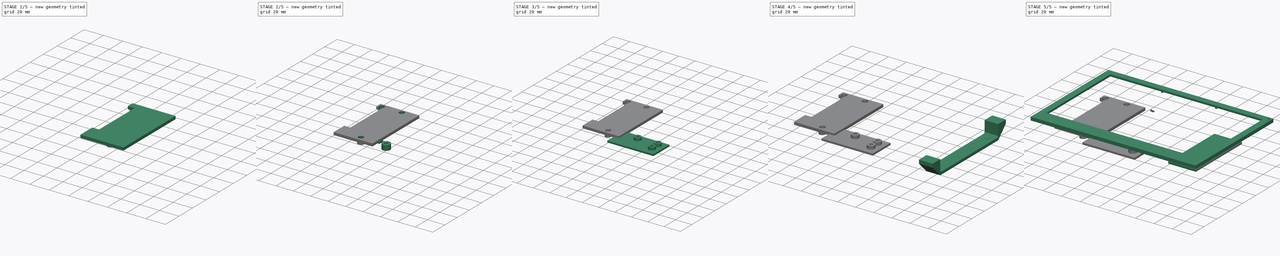
[diagram: build sequence overview — one tinted view per stage of 5, left to right]
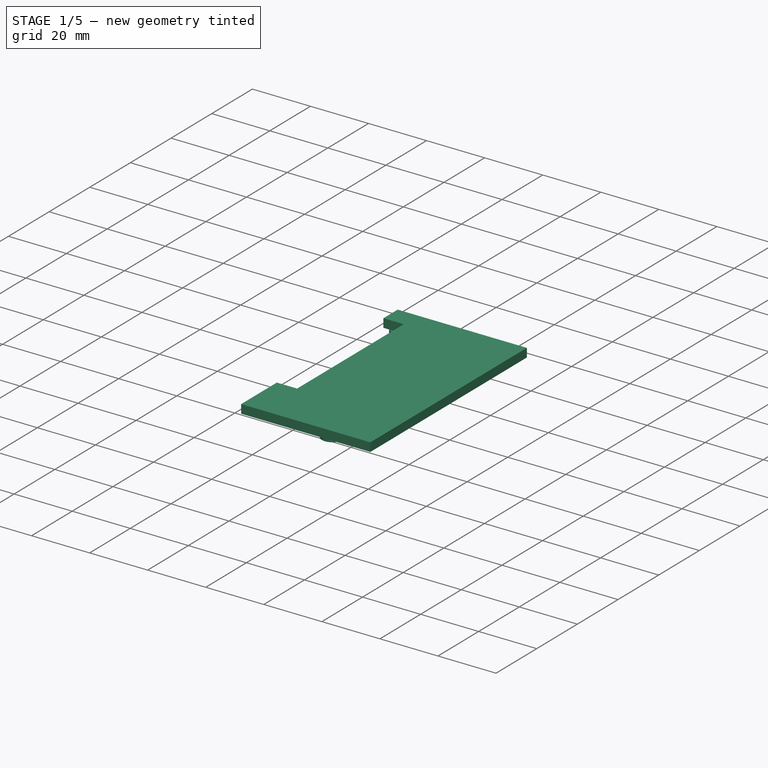
[diagram: stage 1 of 5 — iso view after this stage's code; geometry added in this stage tinted green]
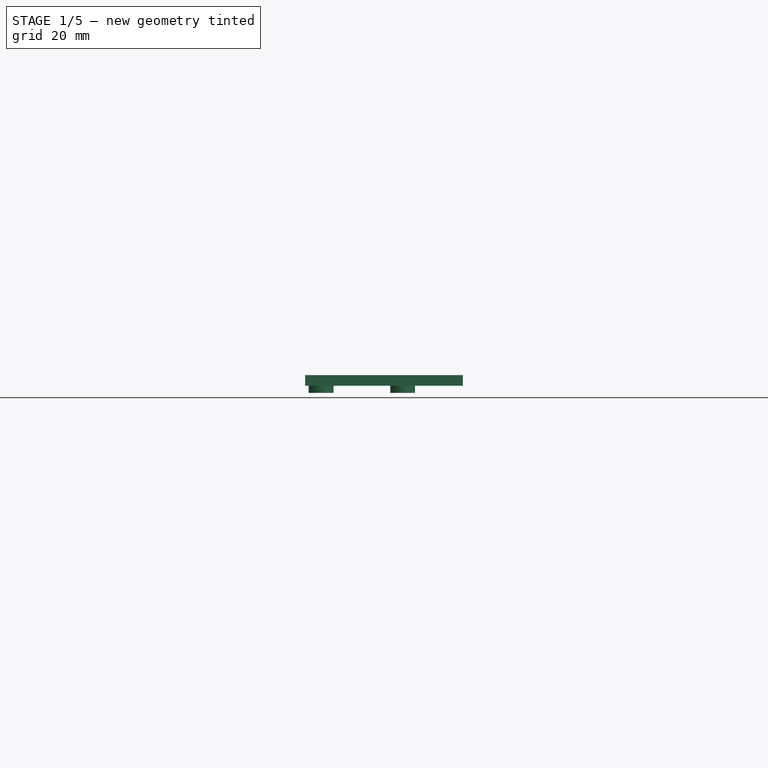
[diagram: stage 1 of 5 — front view after this stage's code; geometry added in this stage tinted green]
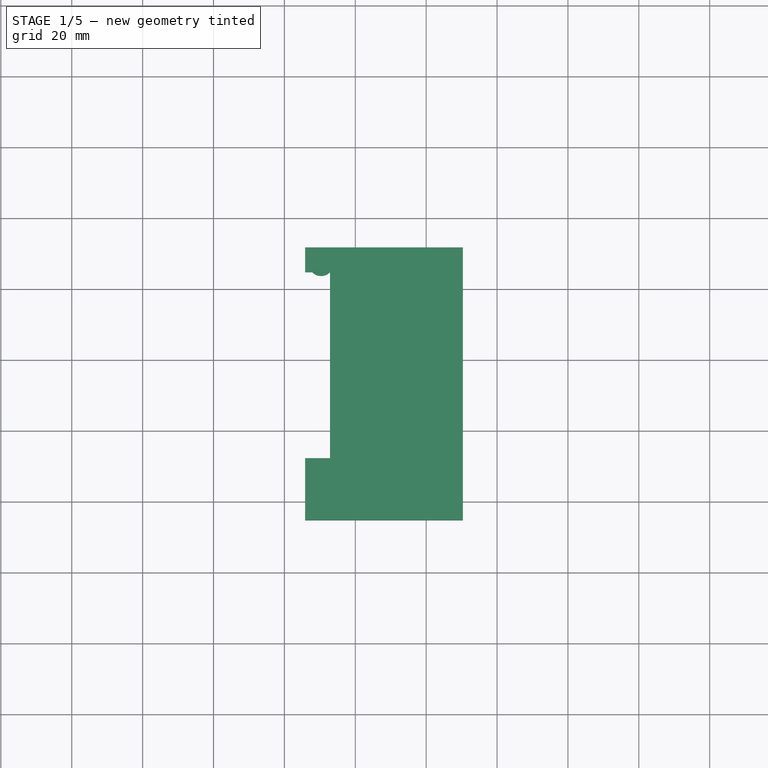
[diagram: stage 1 of 5 — top view after this stage's code; geometry added in this stage tinted green]
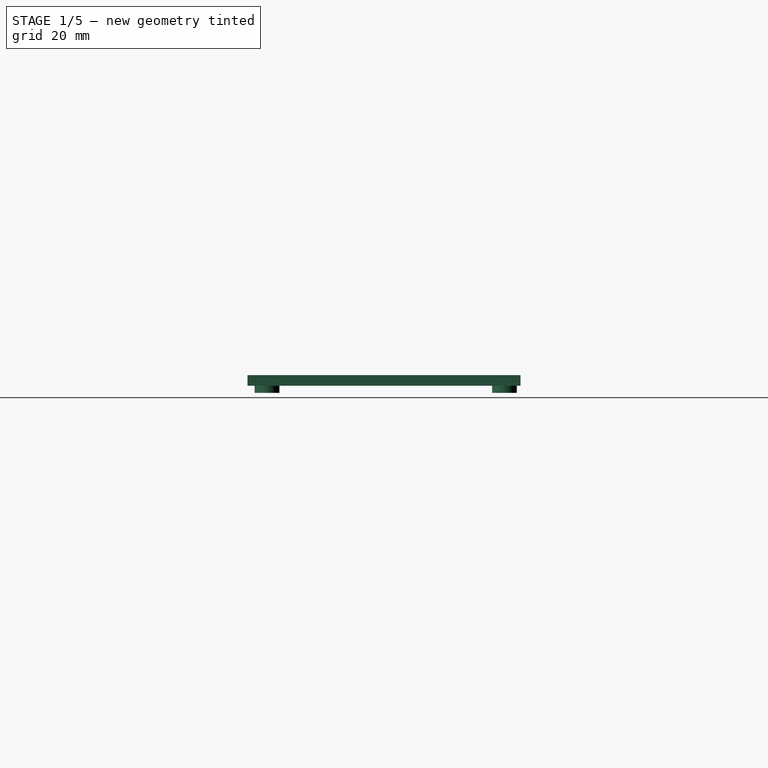
[diagram: stage 1 of 5 — right view after this stage's code; geometry added in this stage tinted green]
FCSTD DOCUMENT  (FreeCAD 1.0R39109 (Git))
Label: esign_7_5_lockplate
License: All rights reserved
LicenseURL: https://en.wikipedia.org/wiki/All_rights_reserved
objects: Sketcher::SketchObject×19, PartDesign::Pad×15, PartDesign::Body×15, PartDesign::Hole×15, PartDesign::SubShapeBinder×10, PartDesign::FeatureBase×8, Part::MultiFuse×3, PartDesign::Pocket×2, Part::Feature×1, Spreadsheet::Sheet×1, PartDesign::Mirrored×1, Part::Part2DObjectPython×1, Part::Extrusion×1, Part::Scale×1
note: 184 computed .brp shape members not serialized (recipe doc carries the construction recipe); baked Part::Feature solids carry a one-line shape summary decoded from their .brp

FEATURE [PartDesign::Body] Body003  label="wall_mount2"
  AllowCompound = false
  Group = -> [Clone,Sketch016,Hole]
  Origin = -> Origin003
  Placement = pos=(-125,0,0) rot=(0,0,1;0rad)
  Tip = -> Hole
FEATURE [PartDesign::Pad] Pad007
  Direction = (0,0,-1)
  Length = 6
  Length2 = 10
  Profile = -> Sketch007
  ReferenceAxis = -> Sketch007 [N_Axis]
  Refine = true
  Suppressed = false
  Type = 0
FEATURE [PartDesign::Hole] Hole002
  BaseFeature = -> Pad007
  CustomThreadClearance = 0
  Depth = 10
  DepthType = 0
  Diameter = 4
  DrillForDepth = false
  DrillPoint = 1
  DrillPointAngle = 118
  HoleCutCountersinkAngle = 90
  HoleCutCustomValues = false
  HoleCutDepth = 0
  HoleCutDiameter = 6.1
  HoleCutType = 2
  ModelThread = false
  Profile = -> Pad007 [Face3]
  Refine = true
  Suppressed = false
  Tapered = false
  TaperedAngle = 90
  ThreadClass = 0
  ThreadDepth = 10
  ThreadDepthType = 0
  ThreadDirection = 0
  ThreadFit = 0
  ThreadSize = 0
  ThreadType = 0
  Threaded = false
  UseCustomThreadClearance = false
FEATURE [PartDesign::FeatureBase] Clone004
  BaseFeature = -> Body006
  Suppressed = false
FEATURE [PartDesign::Body] Body009
  AllowCompound = false
  Group = -> [Clone004]
  Origin = -> Origin009
  Placement = pos=(-57.4,16.6,0) rot=(0,0,1;0rad)
  Tip = -> Clone004
FEATURE [PartDesign::FeatureBase] Clone005
  BaseFeature = -> Body009
  Placement = pos=(-67.4,16.6,0) rot=(0,0,1;0rad)
  Suppressed = false
FEATURE [PartDesign::Body] Body010
  AllowCompound = false
  Group = -> [Clone005]
  Origin = -> Origin010
  Placement = pos=(33,0,0) rot=(0,0,1;0rad)
  Tip = -> Clone005
FEATURE [PartDesign::FeatureBase] Clone006
  BaseFeature = -> Body010
  Placement = pos=(33,0,0) rot=(0,0,1;0rad)
  Suppressed = false
FEATURE [PartDesign::Body] Body011
  AllowCompound = false
  Group = -> [Clone006]
  Origin = -> Origin011
  Placement = pos=(0,58,0) rot=(0,0,1;0rad)
  Tip = -> Clone006
FEATURE [PartDesign::FeatureBase] Clone007
  BaseFeature = -> Body009
  Placement = pos=(-57.4,16.6,0) rot=(0,0,1;0rad)
  Suppressed = false
FEATURE [PartDesign::Body] Body012
  AllowCompound = false
  Group = -> [Clone007]
  Origin = -> Origin012
  Placement = pos=(0,58,0) rot=(0,0,1;0rad)
  Tip = -> Clone007
FEATURE [Part::MultiFuse] Fusion002  label="pcb_mount2"
  Refine = true
  Shapes = -> [Body009,Body010,Body011,Body012]
FEATURE [PartDesign::Body] Body014  label="lockplate1"
  AllowCompound = false
  Group = -> [Binder009,Sketch025,Pad010,Sketch026,Pad011,Sketch027,Pad012,Sketch028,Pad013,Hole003,Hole004,Hole005,Hole006,Hole007,Hole008]
  Origin = -> Origin014
  Tip = -> Hole008
FEATURE [PartDesign::SubShapeBinder] Binder010
  BindCopyOnChange = 0
  BindMode = 0
  ClaimChildren = false
  Context = -> Body015 [Binder010.]
  Fuse = false
  MakeFace = true
  OffsetFill = false
  OffsetIntersection = false
  OffsetJoinType = 0
  OffsetOpenResult = false
  PartialLoad = false
  Refine = true
  Relative = true
  Support = -> [Fusion002]
  _Version = 2
FEATURE [Sketcher::SketchObject] Sketch029
  ArcFitTolerance = 1e-06
  AttachmentSupport = -> [Binder010]
  ExternalGeometry = -> [Binder010]
  FullyConstrained = true
  MakeInternals = false
  MapMode = 5
  Placement = pos=(0,0,-6.91) rot=(1,0,0;3.14159rad)
  sketch-geometry (8):
    g0: LineSegment StartX=-67.15 StartY=27.69 StartZ=0 EndX=-74.15 EndY=27.69 EndZ=0
    g1: LineSegment StartX=-74.15 StartY=27.69 StartZ=0 EndX=-74.15 EndY=45.24 EndZ=0
    g2: LineSegment StartX=-74.15 StartY=45.24 StartZ=0 EndX=-29.65 EndY=45.24 EndZ=0
    g3: LineSegment StartX=-29.65 StartY=45.24 StartZ=0 EndX=-29.65 EndY=-31.76 EndZ=0
    g4: LineSegment StartX=-29.65 StartY=-31.76 StartZ=0 EndX=-74.15 EndY=-31.76 EndZ=0
    g5: LineSegment StartX=-74.15 StartY=-31.76 StartZ=0 EndX=-74.15 EndY=-24.76 EndZ=0
    g6: LineSegment StartX=-74.15 StartY=-24.76 StartZ=0 EndX=-67.15 EndY=-24.76 EndZ=0
    g7: LineSegment StartX=-67.15 StartY=-24.76 StartZ=0 EndX=-67.15 EndY=27.69 EndZ=0
  constraints (24):
    c: Horizontal(g0)
    c: Vertical(g1)
    c: Horizontal(g2)
    c: Vertical(g3)
    c: Horizontal(g4)
    c: Vertical(g5)
    c: Vertical(g7)
    c: Coincident(g0,g7)
    c: Coincident(g6,g7)
    c: Coincident(g6,g5)
    c: Coincident(g2,g1)
    c: Coincident(g1,g0)
    c: Coincident(g2,g3)
    c: Coincident(g3,g4)
    c: Coincident(g4,g5)
    c: Parallel(g6,g4)
    c: DistanceY(g5,g5) = 7
    c: Tangent(g-5,g1)
    c: Tangent(g-7,g4)
    c: DistanceX(g6,g6) = 7
    c: Tangent(g-8,g5)
    c: Distance(g-5,g2) = 10
    c: Tangent(g-9,g0)
    c: Distance(g-7,g3) = 12.5
FEATURE [PartDesign::Pad] Pad014
  Direction = (0,0,-1)
  Length = 3
  Length2 = 10
  Profile = -> Sketch029
  ReferenceAxis = -> Sketch029 [N_Axis]
  Refine = true
  Suppressed = false
  Type = 0
FEATURE [Sketcher::SketchObject] Sketch030
  ArcFitTolerance = 1e-06
  AttachmentSupport = -> [Pad014]
  ExternalGeometry = -> [Binder010,Sketch029]
  FullyConstrained = true
  MakeInternals = false
  MapMode = 5
  Placement = pos=(0,0,-9.91) rot=(1,0,0;3.14159rad)
  sketch-geometry (6):
    g0: Circle CenterX=-69.65 CenterY=-27.26 CenterZ=0 NormalX=0 NormalY=0 NormalZ=1 AngleXU=0 Radius=2
    g1: Circle CenterX=-69.65 CenterY=-27.26 CenterZ=0 NormalX=0 NormalY=0 NormalZ=1 AngleXU=0 Radius=3.5
    g2: Circle CenterX=-46.65 CenterY=-27.26 CenterZ=0 NormalX=0 NormalY=0 NormalZ=1 AngleXU=0 Radius=2
    g3: Circle CenterX=-46.65 CenterY=-27.26 CenterZ=0 NormalX=0 NormalY=0 NormalZ=1 AngleXU=0 Radius=3.5
    g4: Circle CenterX=-46.65 CenterY=39.74 CenterZ=0 NormalX=0 NormalY=0 NormalZ=1 AngleXU=0 Radius=3.5
    g5: Circle CenterX=-46.65 CenterY=39.74 CenterZ=0 NormalX=0 NormalY=0 NormalZ=1 AngleXU=0 Radius=2
  constraints (13):
    c: Coincident(g0,g-4)
    c: Equal(g0,g-4)
    c: Coincident(g1,g0)
    c: Diameter(g1) = 7
    c: Coincident(g2,g-5)
    c: Equal(g2,g-5)
    c: Coincident(g3,g2)
    c: Diameter(g3) = 7
    c: Diameter(g4) = 7
    c: Distance(g4,g-7) = 13.5
    c: Diameter(g5) = 4
    c: Coincident(g5,g4)
    c: Distance(g4,g-6) = 1
FEATURE [PartDesign::Pad] Pad015
  BaseFeature = -> Pad014
  Direction = (0,0,-1)
  Length = 2
  Length2 = 10
  Profile = -> Sketch030
  ReferenceAxis = -> Sketch030 [N_Axis]
  Refine = true
  Suppressed = false
  Type = 0
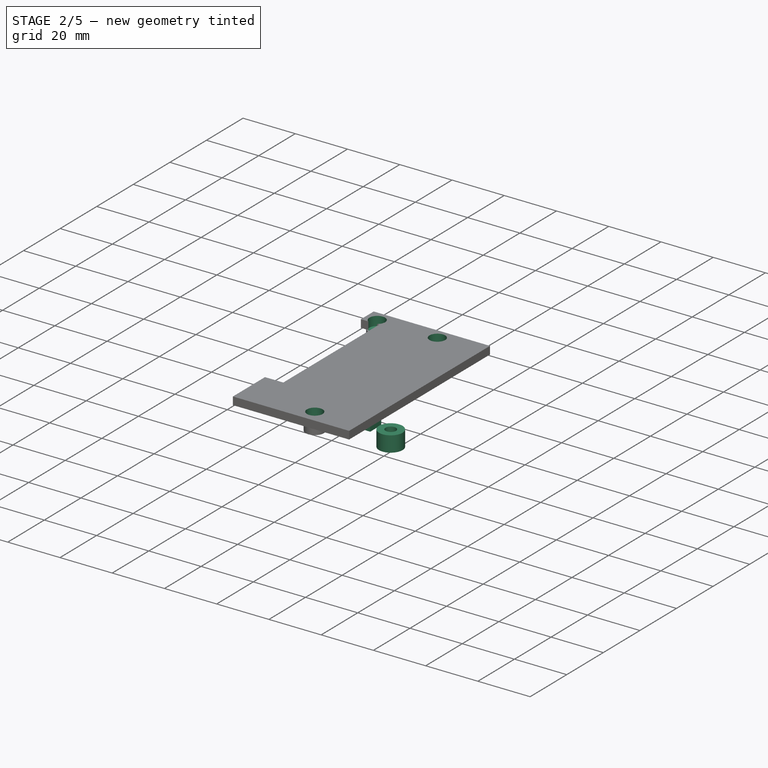
[diagram: stage 2 of 5 — iso view after this stage's code; geometry added in this stage tinted green]
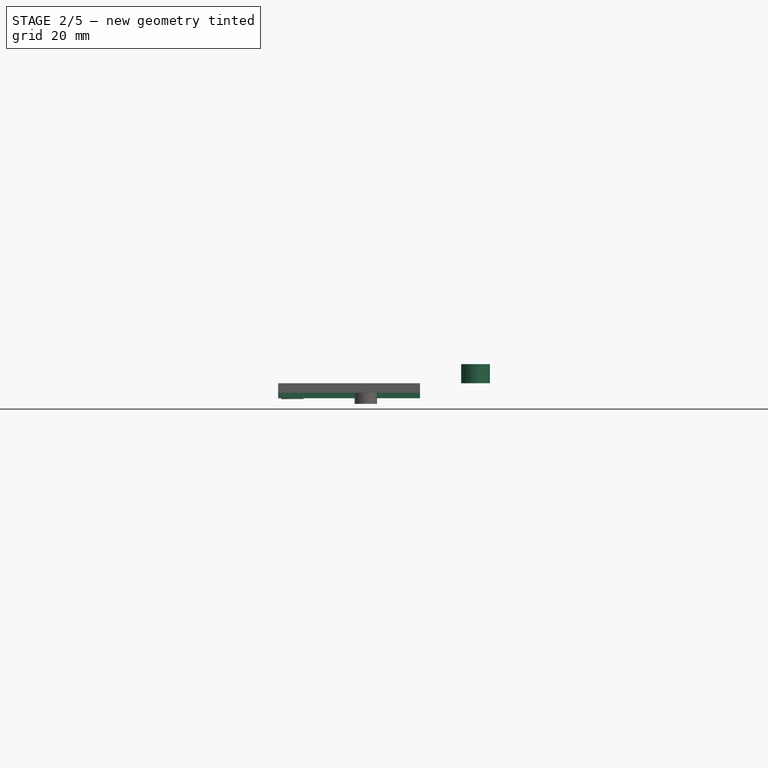
[diagram: stage 2 of 5 — front view after this stage's code; geometry added in this stage tinted green]
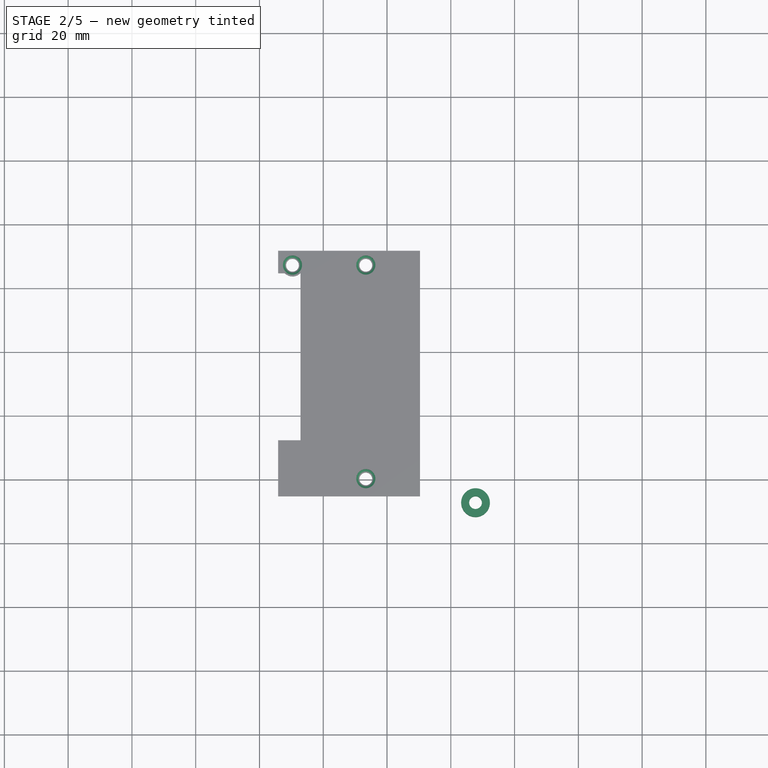
[diagram: stage 2 of 5 — top view after this stage's code; geometry added in this stage tinted green]
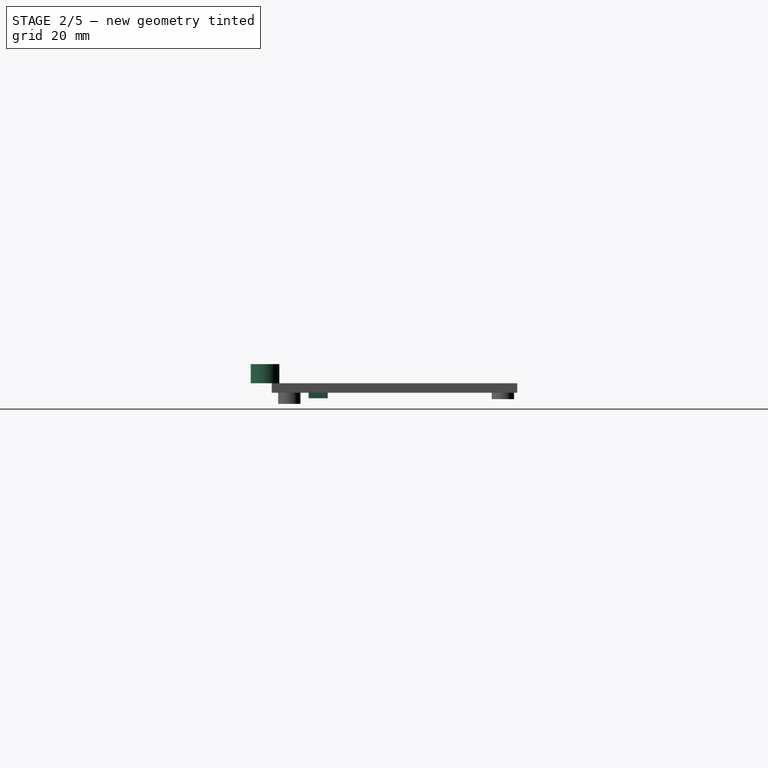
[diagram: stage 2 of 5 — right view after this stage's code; geometry added in this stage tinted green]
FEATURE [PartDesign::Body] Body006  label="pcbmount_1"
  AllowCompound = false
  Group = -> [Binder006,Sketch007,Pad007,Hole002]
  Origin = -> Origin006
  Tip = -> Hole002
FEATURE [PartDesign::FeatureBase] Clone002
  BaseFeature = -> Body006
  Suppressed = false
FEATURE [PartDesign::Hole] Hole009
  BaseFeature = -> Pad015
  CustomThreadClearance = 0
  Depth = 25
  DepthType = 0
  Diameter = 4
  DrillForDepth = false
  DrillPoint = 1
  DrillPointAngle = 118
  HoleCutCountersinkAngle = 90
  HoleCutCustomValues = false
  HoleCutDepth = 0
  HoleCutDiameter = 6.1
  HoleCutType = 0
  ModelThread = false
  Profile = -> Pad015 [Face21]
  Refine = true
  Suppressed = false
  Tapered = false
  TaperedAngle = 90
  ThreadClass = 0
  ThreadDepth = 25
  ThreadDepthType = 0
  ThreadDirection = 0
  ThreadFit = 0
  ThreadSize = 0
  ThreadType = 0
  Threaded = false
  UseCustomThreadClearance = false
FEATURE [PartDesign::Hole] Hole010
  BaseFeature = -> Hole009
  CustomThreadClearance = 0
  Depth = 25
  DepthType = 0
  Diameter = 4
  DrillForDepth = false
  DrillPoint = 1
  DrillPointAngle = 118
  HoleCutCountersinkAngle = 90
  HoleCutCustomValues = false
  HoleCutDepth = 0
  HoleCutDiameter = 6.1
  HoleCutType = 0
  ModelThread = false
  Profile = -> Hole009 [Face22]
  Refine = true
  Suppressed = false
  Tapered = false
  TaperedAngle = 90
  ThreadClass = 0
  ThreadDepth = 25
  ThreadDepthType = 0
  ThreadDirection = 0
  ThreadFit = 0
  ThreadSize = 0
  ThreadType = 0
  Threaded = false
  UseCustomThreadClearance = false
FEATURE [PartDesign::Hole] Hole011
  BaseFeature = -> Hole010
  CustomThreadClearance = 0
  Depth = 25
  DepthType = 0
  Diameter = 4
  DrillForDepth = false
  DrillPoint = 1
  DrillPointAngle = 118
  HoleCutCountersinkAngle = 90
  HoleCutCustomValues = false
  HoleCutDepth = 0
  HoleCutDiameter = 6.1
  HoleCutType = 0
  ModelThread = false
  Profile = -> Hole010 [Face23]
  Refine = true
  Suppressed = false
  Tapered = false
  TaperedAngle = 90
  ThreadClass = 0
  ThreadDepth = 25
  ThreadDepthType = 0
  ThreadDirection = 0
  ThreadFit = 0
  ThreadSize = 0
  ThreadType = 0
  Threaded = false
  UseCustomThreadClearance = false
FEATURE [PartDesign::Hole] Hole012
  BaseFeature = -> Hole011
  CustomThreadClearance = 0
  Depth = 3.5
  DepthType = 0
  Diameter = 6
  DrillForDepth = false
  DrillPoint = 1
  DrillPointAngle = 118
  HoleCutCountersinkAngle = 90
  HoleCutCustomValues = false
  HoleCutDepth = 0
  HoleCutDiameter = 6.1
  HoleCutType = 0
  ModelThread = false
  Profile = -> Hole011 [Edge18]
  Refine = true
  Suppressed = false
  Tapered = false
  TaperedAngle = 90
  ThreadClass = 0
  ThreadDepth = 3.5
  ThreadDepthType = 0
  ThreadDirection = 0
  ThreadFit = 0
  ThreadSize = 0
  ThreadType = 0
  Threaded = false
  UseCustomThreadClearance = false
FEATURE [PartDesign::Hole] Hole013
  BaseFeature = -> Hole012
  CustomThreadClearance = 0
  Depth = 3.5
  DepthType = 0
  Diameter = 6
  DrillForDepth = false
  DrillPoint = 1
  DrillPointAngle = 118
  HoleCutCountersinkAngle = 90
  HoleCutCustomValues = false
  HoleCutDepth = 0
  HoleCutDiameter = 6.1
  HoleCutType = 0
  ModelThread = false
  Profile = -> Hole012 [Edge17]
  Refine = true
  Suppressed = false
  Tapered = false
  TaperedAngle = 90
  ThreadClass = 0
  ThreadDepth = 3.5
  ThreadDepthType = 0
  ThreadDirection = 0
  ThreadFit = 0
  ThreadSize = 0
  ThreadType = 0
  Threaded = false
  UseCustomThreadClearance = false
FEATURE [PartDesign::Hole] Hole014
  BaseFeature = -> Hole013
  CustomThreadClearance = 0
  Depth = 3.5
  DepthType = 0
  Diameter = 6
  DrillForDepth = false
  DrillPoint = 1
  DrillPointAngle = 118
  HoleCutCountersinkAngle = 90
  HoleCutCustomValues = false
  HoleCutDepth = 0
  HoleCutDiameter = 6.1
  HoleCutType = 0
  ModelThread = false
  Profile = -> Hole013 [Edge19]
  Refine = true
  Suppressed = false
  Tapered = false
  TaperedAngle = 90
  ThreadClass = 0
  ThreadDepth = 3.5
  ThreadDepthType = 0
  ThreadDirection = 0
  ThreadFit = 0
  ThreadSize = 0
  ThreadType = 0
  Threaded = false
  UseCustomThreadClearance = false
FEATURE [Sketcher::SketchObject] Sketch031
  ArcFitTolerance = 1e-06
  AttachmentSupport = -> [Hole014]
  ExternalGeometry = -> [Hole014]
  FullyConstrained = true
  MakeInternals = false
  MapMode = 5
  Placement = pos=(0,0,-9.91) rot=(1,0,0;3.14159rad)
  sketch-geometry (4):
    g0: LineSegment StartX=-74.15 StartY=33.69 StartZ=0 EndX=-74.15 EndY=27.69 EndZ=0
    g1: LineSegment StartX=-74.15 StartY=27.69 StartZ=0 EndX=-29.65 EndY=27.69 EndZ=0
    g2: LineSegment StartX=-29.65 StartY=27.69 StartZ=0 EndX=-29.65 EndY=33.69 EndZ=0
    g3: LineSegment StartX=-29.65 StartY=33.69 StartZ=0 EndX=-74.15 EndY=33.69 EndZ=0
  constraints (11):
    c: Coincident(g0,g1)
    c: Coincident(g1,g2)
    c: Coincident(g2,g3)
    c: Coincident(g3,g0)
    c: Vertical(g0)
    c: Vertical(g2)
    c: Horizontal(g1)
    c: Horizontal(g3)
    c: Coincident(g0,g-5)
    c: PointOnObject(g2,g-3)
    c: DistanceY(g2,g2) = 6
FEATURE [PartDesign::Pad] Pad016
  BaseFeature = -> Hole014
  Direction = (0,0,-1)
  Length = 1.7
  Length2 = 10
  Profile = -> Sketch031
  ReferenceAxis = -> Sketch031 [N_Axis]
  Refine = true
  Suppressed = false
  Type = 0
FEATURE [Sketcher::SketchObject] Sketch032
  ArcFitTolerance = 1e-06
  AttachmentSupport = -> [Pad016]
  ExternalGeometry = -> [Pad016]
  FullyConstrained = true
  MakeInternals = false
  MapMode = 5
  Placement = pos=(0,0,-11.91) rot=(1,0,0;3.14159rad)
  sketch-geometry (2):
    g0: Circle CenterX=-46.65 CenterY=39.74 CenterZ=0 NormalX=0 NormalY=0 NormalZ=1 AngleXU=0 Radius=2
    g1: Circle CenterX=-46.65 CenterY=39.74 CenterZ=0 NormalX=0 NormalY=0 NormalZ=1 AngleXU=0 Radius=3.5
  constraints (4):
    c: Coincident(g0,g-4)
    c: Diameter(g0) = 4
    c: Diameter(g1) = 7
    c: Coincident(g0,g1)
FEATURE [PartDesign::Pad] Pad017
  BaseFeature = -> Pad016
  Direction = (0,0,-1)
  Length = 1.5
  Length2 = 10
  Profile = -> Sketch032
  ReferenceAxis = -> Sketch032 [N_Axis]
  Refine = true
  Suppressed = false
  Type = 0
FEATURE [PartDesign::Body] Body015  label="lockplate2"
  AllowCompound = false
  Group = -> [Binder010,Sketch029,Pad014,Sketch030,Pad015,Hole009,Hole010,Hole011,Hole012,Hole013,Hole014,Sketch031,Pad016,Sketch032,Pad017]
  Origin = -> Origin015
  Tip = -> Pad017
note: 1 file-system path scrubbed to <path> (originals preserved in the JSON sidecar)
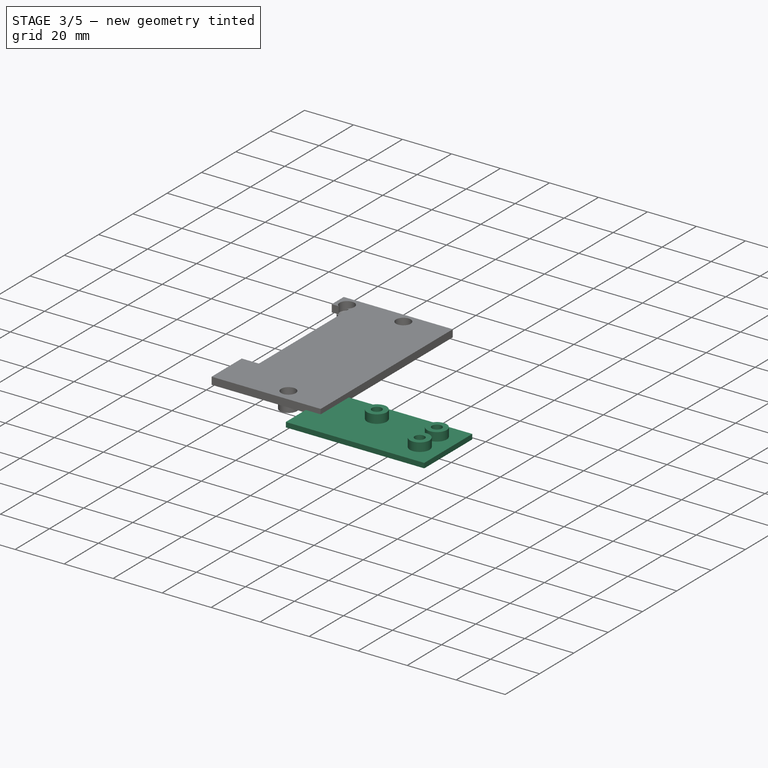
[diagram: stage 3 of 5 — iso view after this stage's code; geometry added in this stage tinted green]
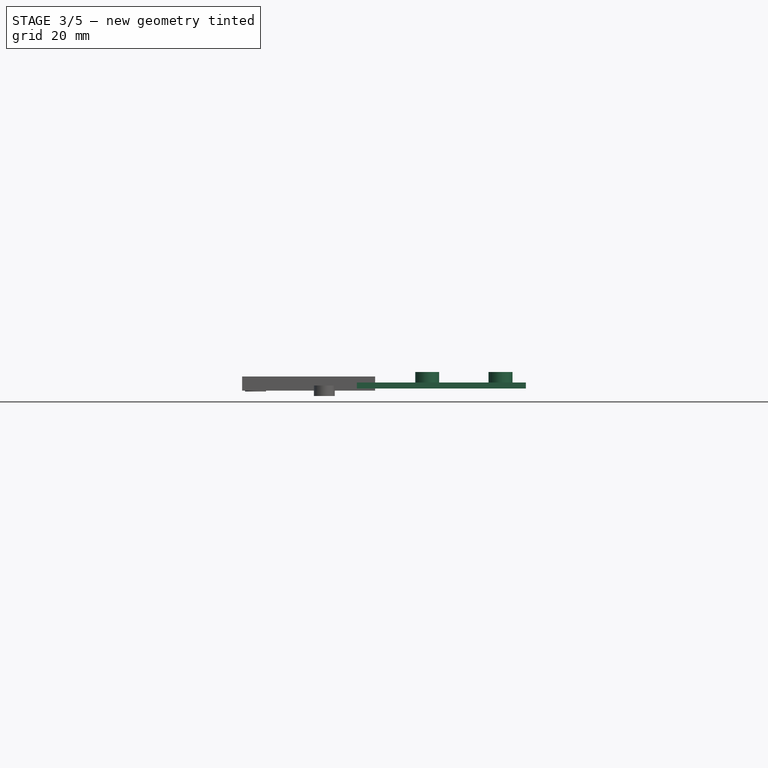
[diagram: stage 3 of 5 — front view after this stage's code; geometry added in this stage tinted green]
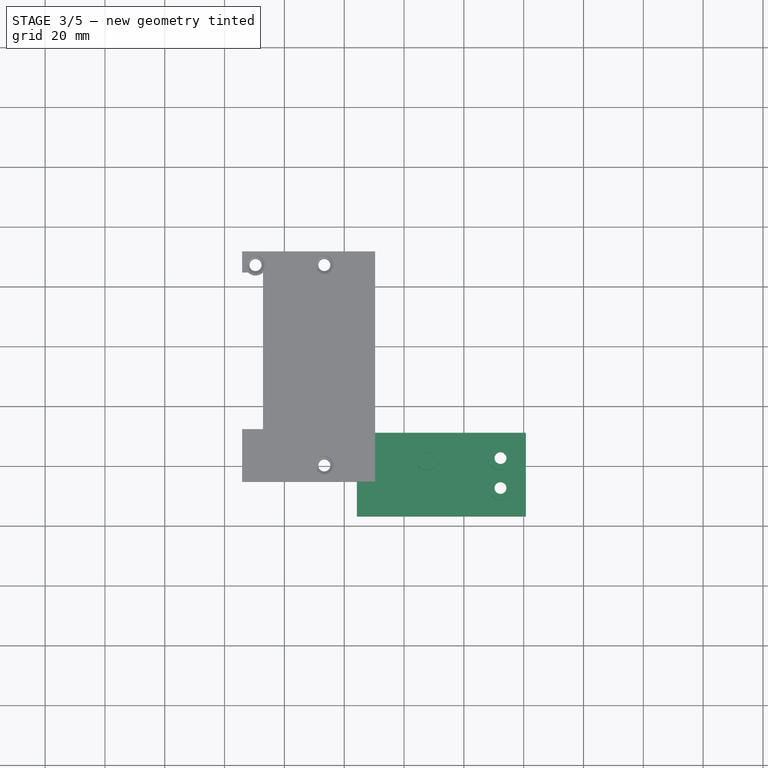
[diagram: stage 3 of 5 — top view after this stage's code; geometry added in this stage tinted green]
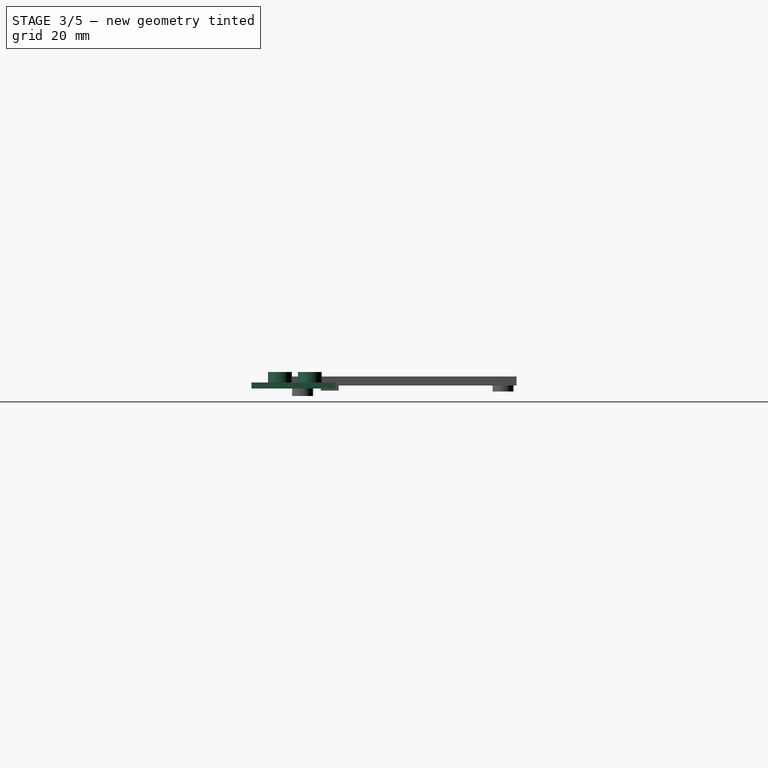
[diagram: stage 3 of 5 — right view after this stage's code; geometry added in this stage tinted green]
FEATURE [PartDesign::Body] Body007
  AllowCompound = false
  Group = -> [Clone002]
  Origin = -> Origin007
  Placement = pos=(24.5,0,0) rot=(0,0,1;0rad)
  Tip = -> Clone002
FEATURE [Part::MultiFuse] Fusion
  Refine = true
  Shapes = -> [Body006,Body007]
FEATURE [PartDesign::FeatureBase] Clone003
  BaseFeature = -> Fusion
  Suppressed = false
FEATURE [PartDesign::Body] Body008
  AllowCompound = false
  Group = -> [Clone003]
  Origin = -> Origin008
  Placement = pos=(0,10,0) rot=(0,0,1;0rad)
  Tip = -> Clone003
FEATURE [Part::MultiFuse] Fusion001  label="pcb_mount1"
  Refine = true
  Shapes = -> [Fusion,Body008]
FEATURE [Part::Scale] Scale  label="Font_wallmount"
  Base = -> Extrude005
  Placement = pos=(154,-67,12) rot=(0,0,1;0rad)
  Uniform = true
  UniformScale = 3
  XScale = 1
  YScale = 1
  ZScale = 1
FEATURE [PartDesign::SubShapeBinder] Binder009
  BindCopyOnChange = 0
  BindMode = 0
  ClaimChildren = false
  Context = -> Body014 [Binder009.]
  Fuse = false
  MakeFace = true
  OffsetFill = false
  OffsetIntersection = false
  OffsetJoinType = 0
  OffsetOpenResult = false
  PartialLoad = false
  Refine = true
  Relative = true
  Support = -> [Fusion001]
  _Version = 2
FEATURE [Sketcher::SketchObject] Sketch025
  ArcFitTolerance = 1e-06
  AttachmentOffset = pos=(0,0,2) rot=(0,0,1;0rad)
  AttachmentSupport = -> [Binder009]
  ExternalGeometry = -> [Binder009]
  FullyConstrained = true
  MakeInternals = false
  MapMode = 5
  Placement = pos=(0,0,-8.91) rot=(1,0,0;3.14159rad)
  sketch-geometry (4):
    g0: LineSegment StartX=-35.75 StartY=56.84 StartZ=0 EndX=-35.75 EndY=28.84 EndZ=0
    g1: LineSegment StartX=-35.75 StartY=28.84 StartZ=0 EndX=20.75 EndY=28.84 EndZ=0
    g2: LineSegment StartX=20.75 StartY=28.84 StartZ=0 EndX=20.75 EndY=56.84 EndZ=0
    g3: LineSegment StartX=20.75 StartY=56.84 StartZ=0 EndX=-35.75 EndY=56.84 EndZ=0
  constraints (12):
    c: Coincident(g0,g1)
    c: Coincident(g1,g2)
    c: Coincident(g2,g3)
    c: Coincident(g3,g0)
    c: Vertical(g0)
    c: Vertical(g2)
    c: Horizontal(g1)
    c: Horizontal(g3)
    c: Distance(g-5,g3) = 5
    c: Distance(g-5,g0) = 19
    c: Distance(g-7,g2) = 4
    c: Distance(g-4,g1) = 4
FEATURE [PartDesign::Pad] Pad010
  Direction = (0,0,-1)
  Length = 2
  Length2 = 10
  Profile = -> Sketch025
  ReferenceAxis = -> Sketch025 [N_Axis]
  Refine = true
  Suppressed = false
  Type = 0
FEATURE [Sketcher::SketchObject] Sketch026
  ArcFitTolerance = 1e-06
  AttachmentSupport = -> [Pad010]
  ExternalGeometry = -> [Binder009]
  FullyConstrained = true
  MakeInternals = false
  MapMode = 5
  Placement = pos=(0,0,-8.91) rot=(0,0,1;0rad)
  sketch-geometry (2):
    g0: Circle CenterX=-12.25 CenterY=-37.34 CenterZ=0 NormalX=0 NormalY=0 NormalZ=1 AngleXU=0 Radius=2
    g1: Circle CenterX=-12.25 CenterY=-37.34 CenterZ=0 NormalX=0 NormalY=0 NormalZ=1 AngleXU=0 Radius=4
  constraints (4):
    c: Diameter(g0) = 4
    c: Coincident(g0,g-4)
    c: Coincident(g1,g0)
    c: Diameter(g1) = 8
FEATURE [PartDesign::Pad] Pad011
  BaseFeature = -> Pad010
  Direction = (0,0,1)
  Length = 3.5
  Length2 = 10
  Profile = -> Sketch026
  ReferenceAxis = -> Sketch026 [N_Axis]
  Refine = true
  Suppressed = false
  Type = 0
FEATURE [Sketcher::SketchObject] Sketch027
  ArcFitTolerance = 1e-06
  AttachmentSupport = -> [Pad011]
  ExternalGeometry = -> [Binder009]
  FullyConstrained = false
  MakeInternals = false
  MapMode = 5
  Placement = pos=(0,0,-8.91) rot=(0,0,1;0rad)
  sketch-geometry (2):
    g0: Circle CenterX=12.25 CenterY=-37.34 CenterZ=0 NormalX=0 NormalY=0 NormalZ=1 AngleXU=0 Radius=4
    g1: Circle CenterX=12.25 CenterY=-37.34 CenterZ=0 NormalX=0 NormalY=0 NormalZ=1 AngleXU=0 Radius=2
  constraints (2):
    c: Diameter(g0) = 8
    c: Diameter(g1) = 4
FEATURE [PartDesign::Pad] Pad012
  BaseFeature = -> Pad011
  Direction = (0,0,1)
  Length = 3.5
  Length2 = 10
  Profile = -> Sketch027
  ReferenceAxis = -> Sketch027 [N_Axis]
  Refine = true
  Suppressed = false
  Type = 0
FEATURE [Sketcher::SketchObject] Sketch028
  ArcFitTolerance = 1e-06
  AttachmentSupport = -> [Pad012]
  ExternalGeometry = -> [Binder009]
  FullyConstrained = true
  MakeInternals = false
  MapMode = 5
  Placement = pos=(0,0,-8.91) rot=(0,0,1;0rad)
  sketch-geometry (2):
    g0: Circle CenterX=12.25 CenterY=-47.34 CenterZ=0 NormalX=0 NormalY=0 NormalZ=1 AngleXU=0 Radius=2
    g1: Circle CenterX=12.25 CenterY=-47.34 CenterZ=0 NormalX=0 NormalY=0 NormalZ=1 AngleXU=0 Radius=4
  constraints (4):
    c: Coincident(g0,g-3)
    c: Coincident(g1,g0)
    c: Diameter(g0) = 4
    c: Diameter(g1) = 8
FEATURE [PartDesign::Pad] Pad013
  BaseFeature = -> Pad012
  Direction = (0,0,1)
  Length = 3.5
  Length2 = 10
  Profile = -> Sketch028
  ReferenceAxis = -> Sketch028 [N_Axis]
  Refine = true
  Suppressed = false
  Type = 0
FEATURE [PartDesign::Hole] Hole003
  BaseFeature = -> Pad013
  CustomThreadClearance = 0
  Depth = 25
  DepthType = 0
  Diameter = 4
  DrillForDepth = false
  DrillPoint = 1
  DrillPointAngle = 118
  HoleCutCountersinkAngle = 90
  HoleCutCustomValues = false
  HoleCutDepth = 0
  HoleCutDiameter = 6.1
  HoleCutType = 0
  ModelThread = false
  Profile = -> Pad013 [Face12]
  Refine = true
  Suppressed = false
  Tapered = false
  TaperedAngle = 90
  ThreadClass = 0
  ThreadDepth = 25
  ThreadDepthType = 0
  ThreadDirection = 0
  ThreadFit = 0
  ThreadSize = 0
  ThreadType = 0
  Threaded = false
  UseCustomThreadClearance = false
FEATURE [PartDesign::Hole] Hole004
  BaseFeature = -> Hole003
  CustomThreadClearance = 0
  Depth = 25
  DepthType = 0
  Diameter = 4
  DrillForDepth = false
  DrillPoint = 1
  DrillPointAngle = 118
  HoleCutCountersinkAngle = 90
  HoleCutCustomValues = false
  HoleCutDepth = 0
  HoleCutDiameter = 6.1
  HoleCutType = 0
  ModelThread = false
  Profile = -> Hole003 [Face17]
  Refine = true
  Suppressed = false
  Tapered = false
  TaperedAngle = 90
  ThreadClass = 0
  ThreadDepth = 25
  ThreadDepthType = 0
  ThreadDirection = 0
  ThreadFit = 0
  ThreadSize = 0
  ThreadType = 0
  Threaded = false
  UseCustomThreadClearance = false
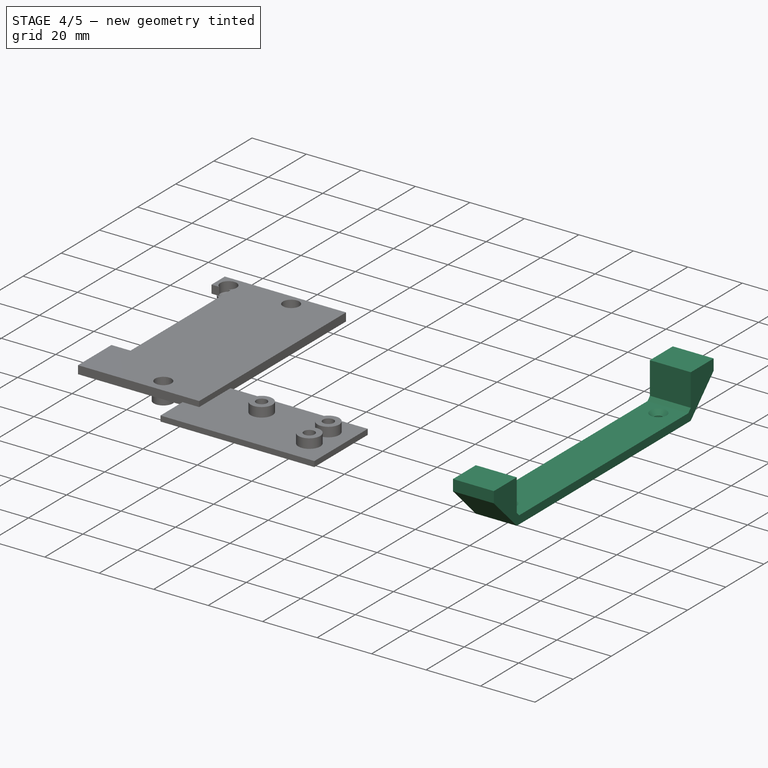
[diagram: stage 4 of 5 — iso view after this stage's code; geometry added in this stage tinted green]
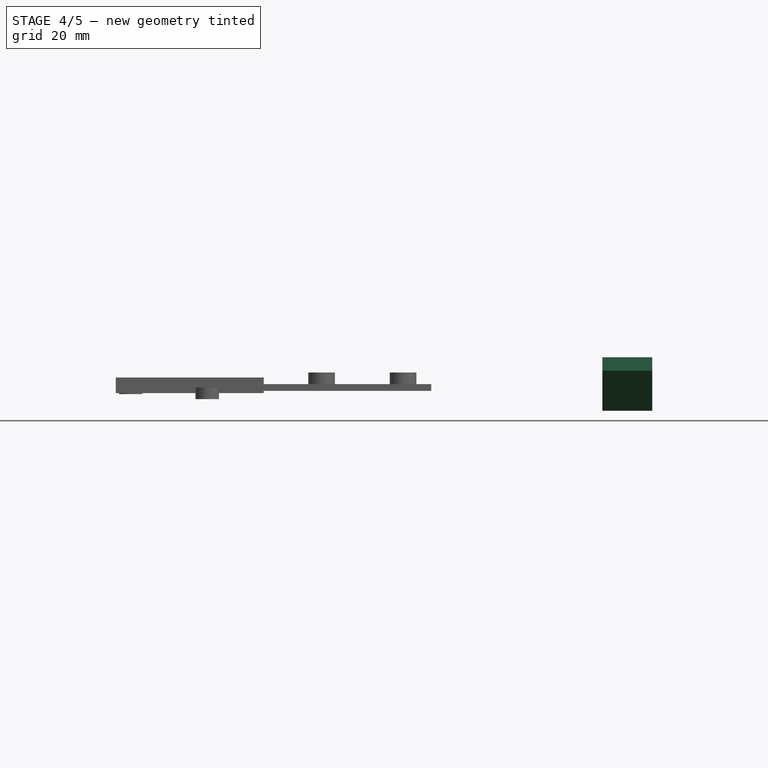
[diagram: stage 4 of 5 — front view after this stage's code; geometry added in this stage tinted green]
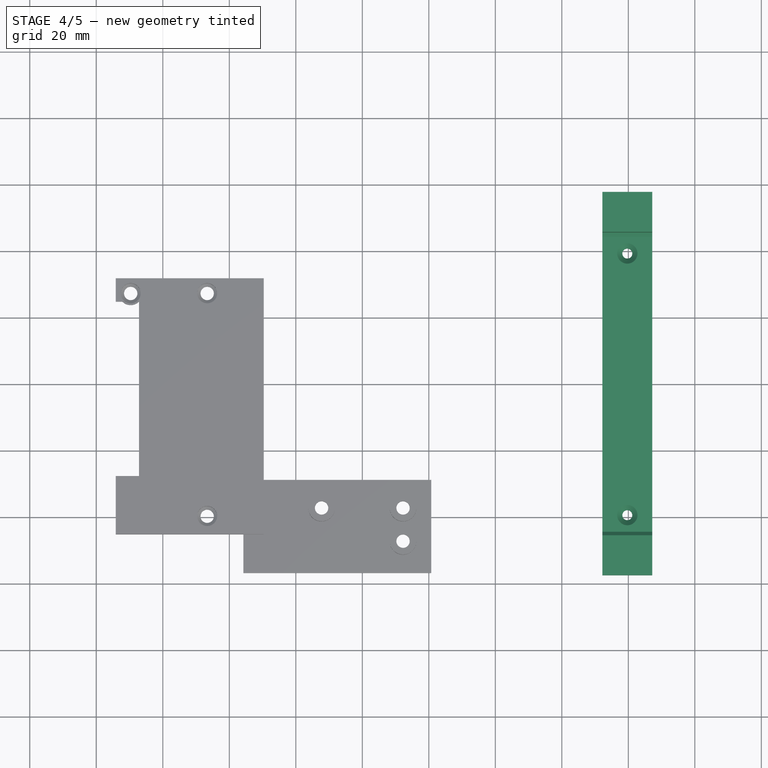
[diagram: stage 4 of 5 — top view after this stage's code; geometry added in this stage tinted green]
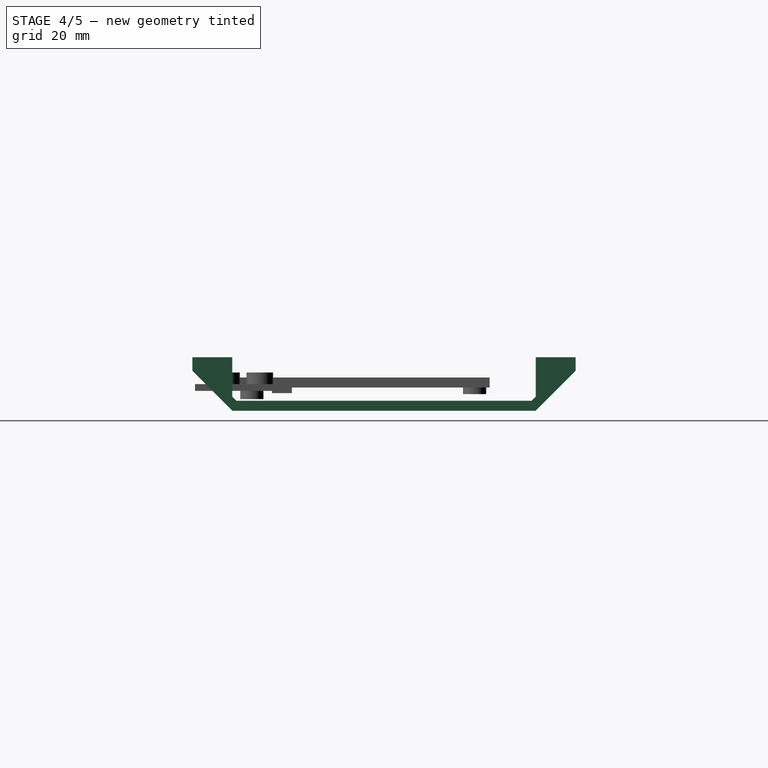
[diagram: stage 4 of 5 — right view after this stage's code; geometry added in this stage tinted green]
FEATURE [PartDesign::SubShapeBinder] Binder002
  BindCopyOnChange = 0
  BindMode = 0
  ClaimChildren = false
  Context = -> Body002 [Binder002.]
  Fuse = false
  MakeFace = true
  OffsetFill = false
  OffsetIntersection = false
  OffsetJoinType = 0
  OffsetOpenResult = false
  PartialLoad = false
  Refine = true
  Relative = true
  _Version = 2
FEATURE [Sketcher::SketchObject] Sketch005
  ArcFitTolerance = 1e-06
  AttachmentSupport = -> [Binder002]
  ExternalGeometry = -> [Binder002]
  FullyConstrained = true
  MakeInternals = false
  MapMode = 5
  Placement = pos=(87.2,0,0) rot=(0.57735,-0.57735,-0.57735;2.0944rad)
  expr: Constraints[15] = <<parameter>>.gap_wallmount_case
  expr: Constraints[21] = <<parameter>>.gap_wallmount_case
  expr: Constraints[22] = <<parameter>>.gap_wallmount_case
  sketch-geometry (8):
    g0: LineSegment StartX=-57.63 StartY=-4.86858 StartZ=0 EndX=-57.63 EndY=-0.81 EndZ=0
    g1: LineSegment StartX=-57.63 StartY=-0.81 StartZ=0 EndX=-45.63 EndY=-0.81 EndZ=0
    g2: LineSegment StartX=-45.63 StartY=-0.81 StartZ=0 EndX=-45.63 EndY=-12.6259 EndZ=0
    g3: LineSegment StartX=-45.63 StartY=-12.6259 StartZ=0 EndX=-44.3459 EndY=-13.91 EndZ=0
    g4: LineSegment StartX=-57.63 StartY=-4.86858 StartZ=0 EndX=-45.5886 EndY=-16.91 EndZ=0
    g5: LineSegment StartX=-44.3459 StartY=-13.91 StartZ=0 EndX=0 EndY=-13.91 EndZ=0
    g6: LineSegment StartX=-45.5886 StartY=-16.91 StartZ=0 EndX=0 EndY=-16.91 EndZ=0
    g7: LineSegment StartX=0 StartY=-13.91 StartZ=0 EndX=0 EndY=-16.91 EndZ=0
  constraints (24):
    c: Horizontal(g1)
    c: Horizontal(g5)
    c: Horizontal(g6)
    c: Coincident(g1,g0)
    c: Coincident(g2,g1)
    c: Coincident(g4,g0)
    c: Parallel(g4,g-3)
    c: Parallel(g0,g-4)
    c: Coincident(g3,g2)
    c: Coincident(g6,g4)
    c: Coincident(g5,g3)
    c: PointOnObject(g5,g-2)
    c: PointOnObject(g6,g-2)
    c: Coincident(g7,g5)
    c: Coincident(g7,g6)
    c: Distance(g-6,g1) = 0.1
    c: Parallel(g2,g0)
    c: PointOnObject(g4,g-5)
    c: Distance(g5,g6) = 3
    c: Parallel(g3,g4)
    c: Distance(g0,g2) = 12
    c: Distance(g0,g-4) = 0.1
    c: Distance(g4,g-3) = 0.1
    c: Distance(g3,g4) = 3
FEATURE [PartDesign::Pad] Pad005
  Direction = (-1,0,0)
  Length = 15
  Length2 = 10
  Profile = -> Sketch005
  ReferenceAxis = -> Sketch005 [N_Axis]
  Refine = true
  Suppressed = false
  Type = 0
FEATURE [PartDesign::Mirrored] Mirrored
  BaseFeature = -> Pad005
  MirrorPlane = -> Sketch005 [V_Axis]
  Originals = -> [Pad005]
  Refine = true
  Suppressed = false
  TransformMode = 0
FEATURE [Sketcher::SketchObject] Sketch024
  ArcFitTolerance = 1e-06
  AttachmentSupport = -> [Mirrored]
  ExternalGeometry = -> [Mirrored]
  FullyConstrained = true
  MakeInternals = false
  MapMode = 5
  Placement = pos=(0,0,-13.91) rot=(0,0,1;0rad)
  sketch-geometry (3):
    g0: LineSegment [constr] StartX=79.7 StartY=44.3459 StartZ=0 EndX=79.7 EndY=-44.3459 EndZ=0
    g1: Circle CenterX=79.7 CenterY=39.3459 CenterZ=0 NormalX=0 NormalY=0 NormalZ=1 AngleXU=0 Radius=0.905
    g2: Circle CenterX=79.7 CenterY=-39.3459 CenterZ=0 NormalX=0 NormalY=0 NormalZ=1 AngleXU=0 Radius=1.26
  constraints (9):
    c: Vertical(g0)
    c: PointOnObject(g0,g-4)
    c: Symmetric(g-6,g-6,g0)
    c: Distance(g1,g-4) = 5
    c: PointOnObject(g1,g0)
    c: Diameter(g1) = 1.81
    c: Diameter(g2) = 2.52
    c: PointOnObject(g2,g0)
    c: Distance(g2,g-6) = 5
FEATURE [PartDesign::Hole] Hole001
  BaseFeature = -> Mirrored
  CustomThreadClearance = 0
  Depth = 25
  DepthType = 0
  Diameter = 3
  DrillForDepth = false
  DrillPoint = 1
  DrillPointAngle = 118
  HoleCutCountersinkAngle = 90
  HoleCutCustomValues = false
  HoleCutDepth = 0
  HoleCutDiameter = 6.1
  HoleCutType = 2
  ModelThread = false
  Profile = -> Sketch024
  Refine = true
  Suppressed = false
  Tapered = false
  TaperedAngle = 90
  ThreadClass = 0
  ThreadDepth = 25
  ThreadDepthType = 0
  ThreadDirection = 0
  ThreadFit = 0
  ThreadSize = 0
  ThreadType = 0
  Threaded = false
  UseCustomThreadClearance = false
FEATURE [PartDesign::Body] Body002  label="wall_mount"
  AllowCompound = false
  Group = -> [Binder002,Sketch005,Pad005,Mirrored,Sketch024,Hole001]
  Origin = -> Origin002
  Tip = -> Hole001
FEATURE [PartDesign::FeatureBase] Clone
  BaseFeature = -> Body002
  Suppressed = false
FEATURE [Sketcher::SketchObject] Sketch016
  ArcFitTolerance = 1e-06
  AttachmentSupport = -> [Clone]
  ExternalGeometry = -> [Clone]
  FullyConstrained = true
  MakeInternals = false
  MapMode = 5
  Placement = pos=(0,0,-13.91) rot=(0,0,1;0rad)
  sketch-geometry (3):
    g0: LineSegment [constr] StartX=79.7 StartY=44.3459 StartZ=0 EndX=79.7 EndY=-44.3459 EndZ=0
    g1: Circle CenterX=79.7 CenterY=39.3459 CenterZ=0 NormalX=0 NormalY=0 NormalZ=1 AngleXU=0 Radius=2.12
    g2: Circle CenterX=79.7 CenterY=-39.3459 CenterZ=0 NormalX=0 NormalY=0 NormalZ=1 AngleXU=0 Radius=2.38
  constraints (9):
    c: Vertical(g0)
    c: PointOnObject(g0,g-6)
    c: Symmetric(g-5,g-5,g0)
    c: PointOnObject(g1,g0)
    c: Distance(g1,g-5) = 5
    c: PointOnObject(g2,g0)
    c: Distance(g2,g-6) = 5
    c: Diameter(g1) = 4.24
    c: Diameter(g2) = 4.76
FEATURE [PartDesign::Hole] Hole
  BaseFeature = -> Clone
  CustomThreadClearance = 0
  Depth = 25
  DepthType = 0
  Diameter = 3
  DrillForDepth = false
  DrillPoint = 1
  DrillPointAngle = 118
  HoleCutCountersinkAngle = 90
  HoleCutCustomValues = false
  HoleCutDepth = 0
  HoleCutDiameter = 6.1
  HoleCutType = 2
  ModelThread = false
  Profile = -> Sketch016
  Refine = true
  Suppressed = false
  Tapered = false
  TaperedAngle = 90
  ThreadClass = 0
  ThreadDepth = 25
  ThreadDepthType = 0
  ThreadDirection = 0
  ThreadFit = 0
  ThreadSize = 0
  ThreadType = 0
  Threaded = false
  UseCustomThreadClearance = false
FEATURE [PartDesign::Hole] Hole005
  BaseFeature = -> Hole004
  CustomThreadClearance = 0
  Depth = 25
  DepthType = 0
  Diameter = 4
  DrillForDepth = false
  DrillPoint = 1
  DrillPointAngle = 118
  HoleCutCountersinkAngle = 90
  HoleCutCustomValues = false
  HoleCutDepth = 0
  HoleCutDiameter = 6.1
  HoleCutType = 0
  ModelThread = false
  Profile = -> Hole004 [Face13]
  Refine = true
  Suppressed = false
  Tapered = false
  TaperedAngle = 90
  ThreadClass = 0
  ThreadDepth = 25
  ThreadDepthType = 0
  ThreadDirection = 0
  ThreadFit = 0
  ThreadSize = 0
  ThreadType = 0
  Threaded = false
  UseCustomThreadClearance = false
FEATURE [PartDesign::Hole] Hole006
  BaseFeature = -> Hole005
  CustomThreadClearance = 0
  Depth = 3
  DepthType = 0
  Diameter = 6
  DrillForDepth = false
  DrillPoint = 1
  DrillPointAngle = 118
  HoleCutCountersinkAngle = 90
  HoleCutCustomValues = false
  HoleCutDepth = 0
  HoleCutDiameter = 6.1
  HoleCutType = 0
  ModelThread = false
  Profile = -> Hole005 [Edge16]
  Refine = true
  Reversed = true
  Suppressed = false
  Tapered = false
  TaperedAngle = 90
  ThreadClass = 0
  ThreadDepth = 3
  ThreadDepthType = 0
  ThreadDirection = 0
  ThreadFit = 0
  ThreadSize = 0
  ThreadType = 0
  Threaded = false
  UseCustomThreadClearance = false
FEATURE [PartDesign::Hole] Hole007
  BaseFeature = -> Hole006
  CustomThreadClearance = 0
  Depth = 3
  DepthType = 0
  Diameter = 6
  DrillForDepth = false
  DrillPoint = 1
  DrillPointAngle = 118
  HoleCutCountersinkAngle = 90
  HoleCutCustomValues = false
  HoleCutDepth = 0
  HoleCutDiameter = 6.1
  HoleCutType = 0
  ModelThread = false
  Profile = -> Hole006 [Edge18]
  Refine = true
  Reversed = true
  Suppressed = false
  Tapered = false
  TaperedAngle = 90
  ThreadClass = 0
  ThreadDepth = 3
  ThreadDepthType = 0
  ThreadDirection = 0
  ThreadFit = 0
  ThreadSize = 0
  ThreadType = 0
  Threaded = false
  UseCustomThreadClearance = false
FEATURE [PartDesign::Hole] Hole008
  BaseFeature = -> Hole007
  CustomThreadClearance = 0
  Depth = 3
  DepthType = 0
  Diameter = 6
  DrillForDepth = false
  DrillPoint = 1
  DrillPointAngle = 118
  HoleCutCountersinkAngle = 90
  HoleCutCustomValues = false
  HoleCutDepth = 0
  HoleCutDiameter = 6.1
  HoleCutType = 0
  ModelThread = false
  Profile = -> Hole007 [Edge17]
  Refine = true
  Reversed = true
  Suppressed = false
  Tapered = false
  TaperedAngle = 90
  ThreadClass = 0
  ThreadDepth = 3
  ThreadDepthType = 0
  ThreadDirection = 0
  ThreadFit = 0
  ThreadSize = 0
  ThreadType = 0
  Threaded = false
  UseCustomThreadClearance = false
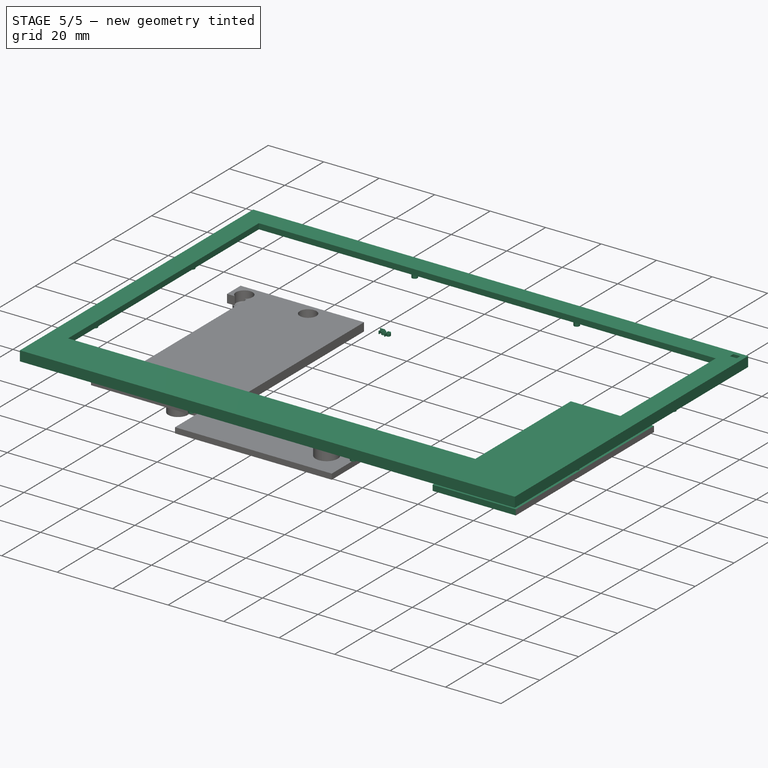
[diagram: stage 5 of 5 — iso view after this stage's code; geometry added in this stage tinted green]
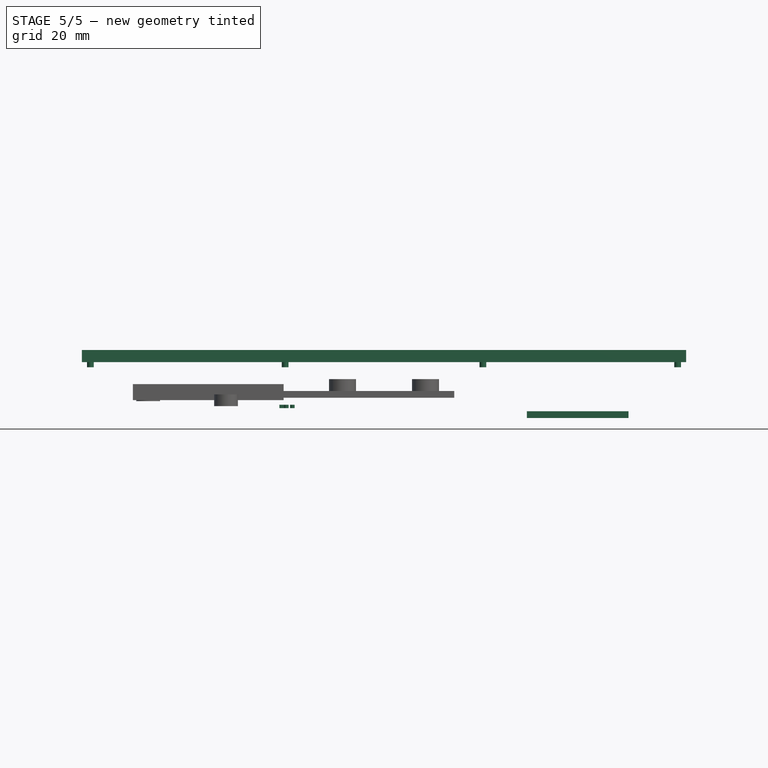
[diagram: stage 5 of 5 — front view after this stage's code; geometry added in this stage tinted green]
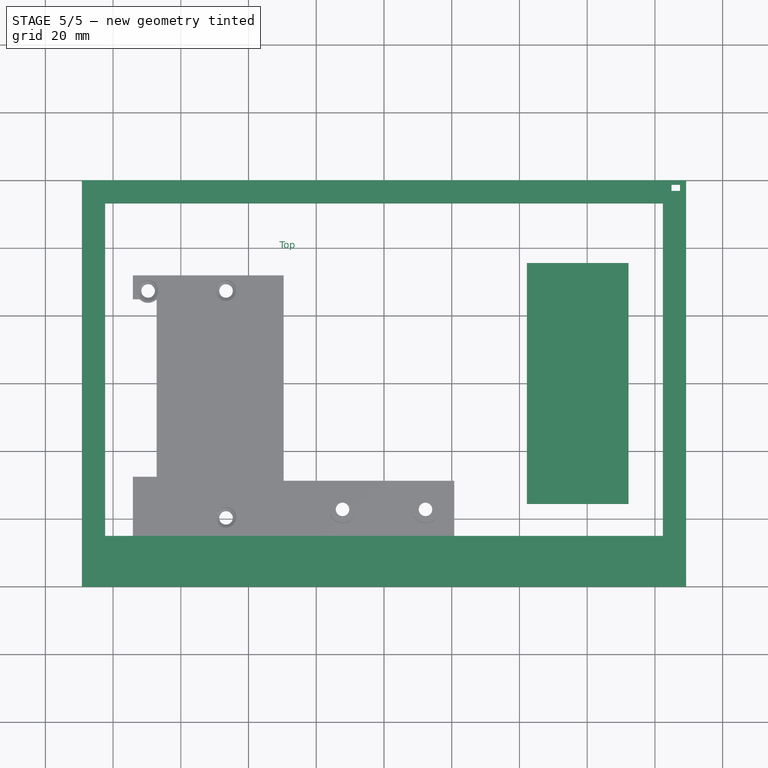
[diagram: stage 5 of 5 — top view after this stage's code; geometry added in this stage tinted green]
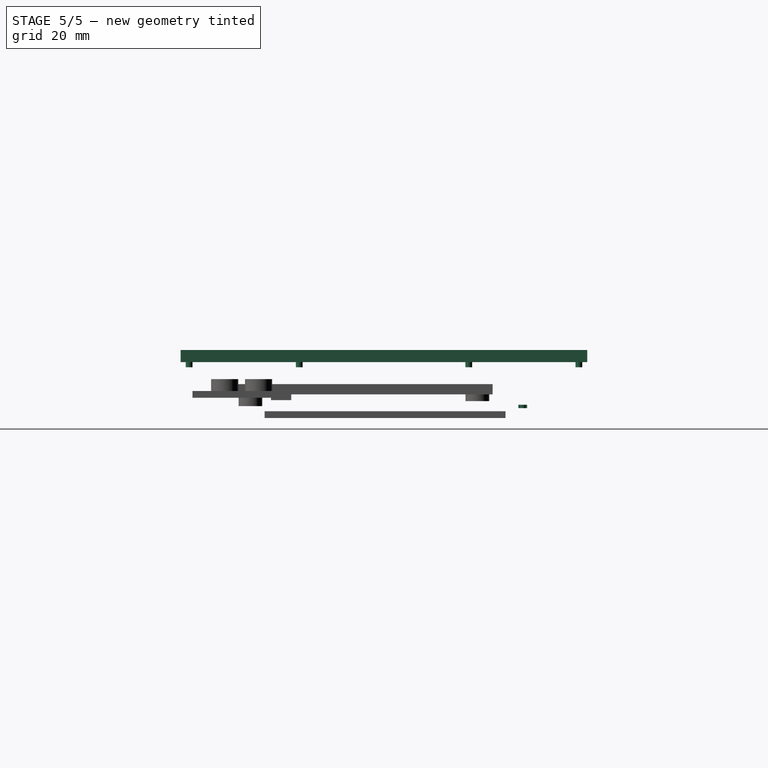
[diagram: stage 5 of 5 — right view after this stage's code; geometry added in this stage tinted green]
FEATURE [Part::Feature] Part__Feature  label="Waveshare 7.5 E-ink - Display Flat Mount"
  Placement = pos=(0,0,0) rot=(0,0,1;1.5708rad)
  shape: bbox 170.4 x 135.5 x 1.275 mm, 1360 faces (baked)
FEATURE [PartDesign::SubShapeBinder] Binder  label="Binder_epaper"
  BindCopyOnChange = 0
  BindMode = 0
  ClaimChildren = false
  Context = -> Body [Binder.]
  Fuse = false
  MakeFace = true
  OffsetFill = false
  OffsetIntersection = false
  OffsetJoinType = 0
  OffsetOpenResult = false
  PartialLoad = false
  Refine = true
  Relative = true
  Support = -> [Part__Feature]
  _Version = 2
FEATURE [Spreadsheet::Sheet] Spreadsheet  label="parameter"
  cells = A1='gap_epaper_bezel; B1(gap_epaper_bezel)==0.15 mm; A2='wall_thickness; B2(wall_thickness)==2 mm; A3='width_wallmount; B3(width_wallmount)==12 mm; A4='gap_wallmount_case; B4(gap_wallmount_case)==0.1 mm; A5='gap_wallmount_case_2; B5(gap_wallmount_case_2)==0.7 mm
FEATURE [Sketcher::SketchObject] Sketch001  label="bezel_front"
  ArcFitTolerance = 1e-06
  AttachmentSupport = -> [Binder]
  ExternalGeometry = -> [Binder]
  FullyConstrained = true
  MakeInternals = false
  MapMode = 5
  Placement = pos=(0,0,1.19) rot=(0,0,1;0rad)
  expr: Constraints[19] = <<parameter>>.gap_epaper_bezel
  expr: Constraints[20] = <<parameter>>.gap_epaper_bezel
  expr: Constraints[21] = <<parameter>>.gap_epaper_bezel
  expr: Constraints[22] = <<parameter>>.gap_epaper_bezel
  sketch-geometry (8):
    g0: LineSegment StartX=-89.2 StartY=59.73 StartZ=0 EndX=-89.2 EndY=-60.34 EndZ=0
    g1: LineSegment StartX=-89.2 StartY=-60.34 StartZ=0 EndX=89.2 EndY=-60.34 EndZ=0
    g2: LineSegment StartX=89.2 StartY=-60.34 StartZ=0 EndX=89.2 EndY=59.73 EndZ=0
    g3: LineSegment StartX=89.2 StartY=59.73 StartZ=0 EndX=-89.2 EndY=59.73 EndZ=0
    g4: LineSegment StartX=-82.35 StartY=52.88 StartZ=0 EndX=-82.35 EndY=-45.34 EndZ=0
    g5: LineSegment StartX=-82.35 StartY=-45.34 StartZ=0 EndX=82.35 EndY=-45.34 EndZ=0
    g6: LineSegment StartX=82.35 StartY=-45.34 StartZ=0 EndX=82.35 EndY=52.88 EndZ=0
    g7: LineSegment StartX=82.35 StartY=52.88 StartZ=0 EndX=-82.35 EndY=52.88 EndZ=0
  constraints (24):
    c: Coincident(g0,g1)
    c: Coincident(g1,g2)
    c: Coincident(g2,g3)
    c: Coincident(g3,g0)
    c: Vertical(g0)
    c: Vertical(g2)
    c: Horizontal(g1)
    c: Horizontal(g3)
    c: Distance(g3,g-3) = 7
    c: Distance(g-4,g0) = 7
    c: Distance(g-7,g2) = 7
    c: Coincident(g4,g5)
    c: Coincident(g5,g6)
    c: Coincident(g6,g7)
    c: Coincident(g7,g4)
    c: Vertical(g4)
    c: Vertical(g6)
    c: Horizontal(g5)
    c: Horizontal(g7)
    c: Distance(g7,g-3) = 0.15
    c: Distance(g-4,g4) = 0.15
    c: Distance(g-9,g5) = 0.15
    c: Distance(g-7,g6) = 0.15
    c: Distance(g5,g1) = 15
FEATURE [PartDesign::Pad] Pad  label="front_bezel"
  Direction = (0,0,1)
  Length = 2
  Length2 = 10
  Profile = -> Sketch001
  ReferenceAxis = -> Sketch001 [N_Axis]
  Refine = true
  Suppressed = false
  Type = 0
FEATURE [Sketcher::SketchObject] Sketch
  ArcFitTolerance = 1e-06
  AttachmentSupport = -> [Pad]
  ExternalGeometry = -> [Binder,Pad]
  FullyConstrained = true
  MakeInternals = false
  MapMode = 5
  Placement = pos=(0,0,1.19) rot=(1,0,0;3.14159rad)
  expr: Constraints[18] = <<parameter>>.gap_epaper_bezel
  expr: Constraints[19] = <<parameter>>.gap_epaper_bezel
  expr: Constraints[25] = 0.2 mm
  expr: Constraints[7] = <<parameter>>.gap_epaper_bezel
  expr: Constraints[8] = <<parameter>>.gap_epaper_bezel
  expr: Constraints[9] = <<parameter>>.gap_epaper_bezel
  sketch-geometry (12):
    g0: LineSegment StartX=-85.35 StartY=55.86 StartZ=0 EndX=-85.35 EndY=-55.86 EndZ=0
    g1: LineSegment StartX=-85.35 StartY=-55.86 StartZ=0 EndX=85.35 EndY=-55.86 EndZ=0
    g2: LineSegment StartX=85.35 StartY=-55.86 StartZ=0 EndX=85.35 EndY=55.86 EndZ=0
    g3: LineSegment StartX=-89.2 StartY=60.34 StartZ=0 EndX=-89.2 EndY=-59.73 EndZ=0
    g4: LineSegment StartX=-89.2 StartY=-59.73 StartZ=0 EndX=89.2 EndY=-59.73 EndZ=0
    g5: LineSegment StartX=89.2 StartY=-59.73 StartZ=0 EndX=89.2 EndY=60.34 EndZ=0
    g6: LineSegment StartX=-11.4649 StartY=55.86 StartZ=0 EndX=-85.35 EndY=55.86 EndZ=0
    g7: LineSegment StartX=85.35 StartY=55.86 StartZ=0 EndX=11.4649 EndY=55.86 EndZ=0
    g8: LineSegment StartX=-11.4649 StartY=59.34 StartZ=0 EndX=11.4649 EndY=59.34 EndZ=0
    g9: LineSegment StartX=-11.4649 StartY=59.34 StartZ=0 EndX=-11.4649 EndY=55.86 EndZ=0
    g10: LineSegment StartX=11.4649 StartY=59.34 StartZ=0 EndX=11.4649 EndY=55.86 EndZ=0
    g11: LineSegment StartX=-89.2 StartY=60.34 StartZ=0 EndX=89.2 EndY=60.34 EndZ=0
  constraints (33):
    c: Coincident(g0,g1)
    c: Coincident(g1,g2)
    c: Coincident(g2,g7)
    c: Coincident(g6,g0)
    c: Vertical(g0)
    c: Vertical(g2)
    c: Horizontal(g1)
    c: Distance(g2,g-5) = 0.15
    c: Distance(g-3,g0) = 0.15
    c: Distance(g-4,g1) = 0.15
    c: Coincident(g3,g4)
    c: Coincident(g4,g5)
    c: Vertical(g3)
    c: Horizontal(g4)
    c: Coincident(g3,g-7)
    c: Coincident(g4,g-9)
    c: Horizontal(g6)
    c: Horizontal(g7)
    c: Distance(g6,g-16) = 0.15
    c: Distance(g-16,g7) = 0.15
    c: Coincident(g5,g-8)
    c: Horizontal(g8)
    c: Vertical(g9)
    c: Coincident(g8,g9)
    c: Coincident(g6,g9)
    c: Distance(g-10,g9) = 0.2
    c: Vertical(g10)
    c: Coincident(g10,g8)
    c: Coincident(g10,g7)
    c: Distance(g10,g-11) = 0.2
    c: Coincident(g11,g3)
    c: Coincident(g11,g5)
    c: Distance(g11,g8) = 1
FEATURE [PartDesign::Pad] Pad001
  BaseFeature = -> Pad
  Direction = (0,0,-1)
  Length = 1.6
  Length2 = 10
  Profile = -> Sketch
  ReferenceAxis = -> Sketch [N_Axis]
  Refine = true
  Suppressed = false
  Type = 0
FEATURE [PartDesign::SubShapeBinder] Binder003
  BindCopyOnChange = 0
  BindMode = 0
  ClaimChildren = false
  Context = -> Body004 [Binder003.]
  Fuse = false
  MakeFace = true
  OffsetFill = false
  OffsetIntersection = false
  OffsetJoinType = 0
  OffsetOpenResult = false
  PartialLoad = false
  Refine = true
  Relative = true
  Support = -> [Body003]
  _Version = 2
FEATURE [PartDesign::SubShapeBinder] Binder004
  BindCopyOnChange = 0
  BindMode = 0
  ClaimChildren = false
  Context = -> Body004 [Binder004.]
  Fuse = false
  MakeFace = true
  OffsetFill = false
  OffsetIntersection = false
  OffsetJoinType = 0
  OffsetOpenResult = false
  PartialLoad = false
  Refine = true
  Relative = true
  Support = -> [Body002]
  _Version = 2
FEATURE [PartDesign::SubShapeBinder] Binder005
  BindCopyOnChange = 0
  BindMode = 0
  ClaimChildren = false
  Context = -> Body004 [Binder005.]
  Fuse = false
  MakeFace = true
  OffsetFill = false
  OffsetIntersection = false
  OffsetJoinType = 0
  OffsetOpenResult = false
  PartialLoad = false
  Refine = true
  Relative = true
  _Version = 2
FEATURE [Sketcher::SketchObject] Sketch006
  ArcFitTolerance = 1e-06
  AttachmentSupport = -> [Binder003]
  ExternalGeometry = -> [Binder004,Binder003]
  FullyConstrained = true
  MakeInternals = false
  MapMode = 5
  Placement = pos=(0,0,-16.91) rot=(1,0,0;3.14159rad)
  sketch-geometry (4):
    g0: LineSegment StartX=-37.8 StartY=-35.5886 StartZ=0 EndX=-37.8 EndY=-45.5886 EndZ=0
    g1: LineSegment StartX=-37.8 StartY=-45.5886 StartZ=0 EndX=72.2 EndY=-45.5886 EndZ=0
    g2: LineSegment StartX=72.2 StartY=-45.5886 StartZ=0 EndX=72.2 EndY=-35.5886 EndZ=0
    g3: LineSegment StartX=72.2 StartY=-35.5886 StartZ=0 EndX=-37.8 EndY=-35.5886 EndZ=0
  constraints (10):
    c: Coincident(g0,g1)
    c: Coincident(g1,g2)
    c: Coincident(g2,g3)
    c: Coincident(g3,g0)
    c: Vertical(g0)
    c: Vertical(g2)
    c: Coincident(g-3,g1)
    c: Coincident(g-4,g0)
    c: Distance(g1,g3) = 10
    c: Parallel(g3,g1)
FEATURE [PartDesign::Pad] Pad006
  Direction = (0,0,-1)
  Length = 3
  Length2 = 10
  Profile = -> Sketch006
  ReferenceAxis = -> Sketch006 [N_Axis]
  Refine = true
  Reversed = true
  Suppressed = false
  Type = 0
FEATURE [PartDesign::Body] Body004  label="wall_mount3"
  AllowCompound = false
  Group = -> [Binder003,Binder004,Binder005,Sketch006,Pad006]
  Origin = -> Origin004
  Tip = -> Pad006
FEATURE [PartDesign::FeatureBase] Clone001
  BaseFeature = -> Body004
  Suppressed = false
FEATURE [PartDesign::Body] Body005  label="wall_mount_4"
  AllowCompound = false
  Group = -> [Clone001]
  Origin = -> Origin005
  Placement = pos=(0,-81.15,0) rot=(0,0,1;0rad)
  Tip = -> Clone001
FEATURE [PartDesign::SubShapeBinder] Binder006
  BindCopyOnChange = 0
  BindMode = 0
  ClaimChildren = false
  Context = -> Body006 [Binder006.]
  Fuse = false
  MakeFace = true
  OffsetFill = false
  OffsetIntersection = false
  OffsetJoinType = 0
  OffsetOpenResult = false
  PartialLoad = false
  Refine = true
  Relative = true
  _Version = 2
FEATURE [Sketcher::SketchObject] Sketch007
  ArcFitTolerance = 1e-06
  AttachmentSupport = -> [Binder006]
  ExternalGeometry = -> [Binder006]
  FullyConstrained = true
  MakeInternals = false
  MapMode = 5
  Placement = pos=(0,0,-0.91) rot=(1,0,0;3.14159rad)
  sketch-geometry (1):
    g0: Circle CenterX=-12.25 CenterY=47.34 CenterZ=0 NormalX=0 NormalY=0 NormalZ=1 AngleXU=0 Radius=4.5
  constraints (3):
    c: Diameter(g0) = 9
    c: Distance(g0,g-5) = 5
    c: Distance(g0,g-2) = 12.25
FEATURE [PartDesign::SubShapeBinder] Binder007
  BindCopyOnChange = 0
  BindMode = 0
  ClaimChildren = false
  Context = -> Body013 [Binder007.]
  Fuse = false
  MakeFace = true
  OffsetFill = false
  OffsetIntersection = false
  OffsetJoinType = 0
  OffsetOpenResult = false
  PartialLoad = false
  Refine = true
  Relative = true
  Support = -> [Body002]
  _Version = 2
FEATURE [PartDesign::SubShapeBinder] Binder008
  BindCopyOnChange = 0
  BindMode = 0
  ClaimChildren = false
  Context = -> Body013 [Binder008.]
  Fuse = false
  MakeFace = true
  OffsetFill = false
  OffsetIntersection = false
  OffsetJoinType = 0
  OffsetOpenResult = false
  PartialLoad = false
  Refine = true
  Relative = true
  Support = -> [Body003,Body004,Body005]
  _Version = 2
FEATURE [Sketcher::SketchObject] Sketch008
  ArcFitTolerance = 1e-06
  AttachmentSupport = -> [Binder007]
  ExternalGeometry = -> [Binder008,Binder007]
  FullyConstrained = true
  MakeInternals = false
  MapMode = 5
  Placement = pos=(0,0,-16.91) rot=(1,0,0;3.14159rad)
  sketch-geometry (4):
    g0: LineSegment StartX=42.2 StartY=35.5614 StartZ=0 EndX=42.2 EndY=-35.5886 EndZ=0
    g1: LineSegment StartX=42.2 StartY=-35.5886 StartZ=0 EndX=72.2 EndY=-35.5886 EndZ=0
    g2: LineSegment StartX=72.2 StartY=-35.5886 StartZ=0 EndX=72.2 EndY=35.5614 EndZ=0
    g3: LineSegment StartX=72.2 StartY=35.5614 StartZ=0 EndX=42.2 EndY=35.5614 EndZ=0
  constraints (10):
    c: Coincident(g0,g1)
    c: Coincident(g1,g2)
    c: Coincident(g2,g3)
    c: Coincident(g3,g0)
    c: Vertical(g0)
    c: Horizontal(g1)
    c: Horizontal(g3)
    c: Coincident(g2,g-3)
    c: Coincident(g1,g-5)
    c: DistanceX(g3,g3) = 30
FEATURE [PartDesign::Pad] Pad008
  Direction = (0,0,-1)
  Length = 2
  Length2 = 10
  Profile = -> Sketch008
  ReferenceAxis = -> Sketch008 [N_Axis]
  Refine = true
  Reversed = true
  Suppressed = false
  Type = 0
FEATURE [PartDesign::Body] Body013  label="wall_mount_5"
  AllowCompound = false
  Group = -> [Binder007,Sketch008,Binder008,Pad008]
  Origin = -> Origin013
  Tip = -> Pad008
FEATURE [Sketcher::SketchObject] Sketch009
  ArcFitTolerance = 1e-06
  AttachmentSupport = -> [Pad001]
  ExternalGeometry = -> [Pad001]
  FullyConstrained = true
  MakeInternals = false
  MapMode = 5
  Placement = pos=(0,0,-0.41) rot=(1,0,0;3.14159rad)
  sketch-geometry (4):
    g0: LineSegment StartX=88.2 StartY=-58.73 StartZ=0 EndX=88.2 EndY=-54.73 EndZ=0
    g1: LineSegment StartX=88.2 StartY=-54.73 StartZ=0 EndX=83.2 EndY=-54.73 EndZ=0
    g2: LineSegment StartX=83.2 StartY=-54.73 StartZ=0 EndX=83.2 EndY=-58.73 EndZ=0
    g3: LineSegment StartX=83.2 StartY=-58.73 StartZ=0 EndX=88.2 EndY=-58.73 EndZ=0
  constraints (12):
    c: Coincident(g0,g1)
    c: Coincident(g1,g2)
    c: Coincident(g2,g3)
    c: Coincident(g3,g0)
    c: Vertical(g0)
    c: Vertical(g2)
    c: Horizontal(g1)
    c: Horizontal(g3)
    c: Distance(g0,g2) = 5
    c: Distance(g3,g1) = 4
    c: Distance(g-3,g0) = 1
    c: Distance(g-4,g3) = 1
FEATURE [PartDesign::Pocket] Pocket
  BaseFeature = -> Pad001
  Direction = (0,0,1)
  Length = 2.9
  Length2 = 5
  Profile = -> Sketch009
  ReferenceAxis = -> Sketch009 [N_Axis]
  Refine = true
  Suppressed = false
  Type = 0
FEATURE [Sketcher::SketchObject] Sketch010
  ArcFitTolerance = 1e-06
  AttachmentSupport = -> [Pocket]
  ExternalGeometry = -> [Pocket]
  FullyConstrained = true
  MakeInternals = false
  MapMode = 5
  Placement = pos=(0,0,1.19) rot=(1,0,0;3.14159rad)
  sketch-geometry (4):
    g0: LineSegment StartX=84.89 StartY=-56.54 StartZ=0 EndX=84.89 EndY=-58.34 EndZ=0
    g1: LineSegment StartX=84.89 StartY=-58.34 StartZ=0 EndX=87.39 EndY=-58.34 EndZ=0
    g2: LineSegment StartX=87.39 StartY=-58.34 StartZ=0 EndX=87.39 EndY=-56.54 EndZ=0
    g3: LineSegment StartX=87.39 StartY=-56.54 StartZ=0 EndX=84.89 EndY=-56.54 EndZ=0
  constraints (12):
    c: Coincident(g0,g1)
    c: Coincident(g1,g2)
    c: Coincident(g2,g3)
    c: Coincident(g3,g0)
    c: Vertical(g0)
    c: Vertical(g2)
    c: Horizontal(g1)
    c: Horizontal(g3)
    c: DistanceX(g3,g3) = 2.5
    c: DistanceY(g2,g2) = 1.8
    c: Distance(g-5,g2) = 1.81
    c: Distance(g-4,g1) = 1.39
FEATURE [PartDesign::Pocket] Pocket001
  BaseFeature = -> Pocket
  Direction = (0,0,1)
  Length = 5
  Length2 = 5
  Profile = -> Sketch010
  ReferenceAxis = -> Sketch010 [N_Axis]
  Refine = true
  Suppressed = false
  Type = 0
FEATURE [Sketcher::SketchObject] Sketch011
  ArcFitTolerance = 1e-06
  AttachmentSupport = -> [Pocket001]
  ExternalGeometry = -> [Pocket001]
  FullyConstrained = true
  MakeInternals = false
  MapMode = 5
  Placement = pos=(0,0,-0.41) rot=(1,0,0;3.14159rad)
  sketch-geometry (8):
    g0: Circle CenterX=-29.2 CenterY=57.84 CenterZ=0 NormalX=0 NormalY=0 NormalZ=1 AngleXU=0 Radius=1
    g1: Circle CenterX=29.2 CenterY=57.84 CenterZ=0 NormalX=0 NormalY=0 NormalZ=1 AngleXU=0 Radius=1
    g2: Circle CenterX=-29.2 CenterY=-57.23 CenterZ=0 NormalX=0 NormalY=0 NormalZ=1 AngleXU=0 Radius=1
    g3: Circle CenterX=29.2 CenterY=-57.23 CenterZ=0 NormalX=0 NormalY=0 NormalZ=1 AngleXU=0 Radius=1
    g4: Circle CenterX=-86.7 CenterY=-24.73 CenterZ=0 NormalX=0 NormalY=0 NormalZ=1 AngleXU=0 Radius=1
    g5: Circle CenterX=-86.7 CenterY=25.34 CenterZ=0 NormalX=0 NormalY=0 NormalZ=1 AngleXU=0 Radius=1
    g6: Circle CenterX=86.7 CenterY=25.34 CenterZ=0 NormalX=0 NormalY=0 NormalZ=1 AngleXU=0 Radius=1
    g7: Circle CenterX=86.7 CenterY=-24.73 CenterZ=0 NormalX=0 NormalY=0 NormalZ=1 AngleXU=0 Radius=1
  constraints (24):
    c: Diameter(g0) = 2
    c: Diameter(g1) = 2
    c: Diameter(g2) = 2
    c: Distance(g0,g-4) = 60
    c: Distance(g0,g-3) = 2.5
    c: Distance(g1,g-3) = 2.5
    c: Distance(g1,g-5) = 60
    c: Distance(g2,g-11) = 2.5
    c: Distance(g2,g-4) = 60
    c: Diameter(g3) = 2
    c: Distance(g3,g-11) = 2.5
    c: Distance(g3,g-5) = 60
    c: Diameter(g4) = 2
    c: Distance(g4,g-4) = 2.5
    c: Distance(g4,g-11) = 35
    c: Diameter(g5) = 2
    c: Distance(g5,g-4) = 2.5
    c: Distance(g5,g-3) = 35
    c: Diameter(g6) = 2
    c: Diameter(g7) = 2
    c: Distance(g6,g-5) = 2.5
    c: Distance(g6,g-3) = 35
    c: Distance(g7,g-5) = 2.5
    c: Distance(g7,g-11) = 35
FEATURE [PartDesign::Pad] Pad009
  BaseFeature = -> Pocket001
  Direction = (0,0,-1)
  Length = 1.5
  Length2 = 10
  Profile = -> Sketch011
  ReferenceAxis = -> Sketch011 [N_Axis]
  Refine = true
  Suppressed = false
  Type = 0
FEATURE [PartDesign::Body] Body  label="Bezel"
  AllowCompound = false
  Group = -> [Binder,Sketch001,Pad,Sketch,Pad001,Sketch009,Pocket,Sketch010,Pocket001,Sketch011,Pad009]
  Origin = -> Origin
  Tip = -> Pad009
FEATURE [Part::Part2DObjectPython] ShapeString  # Draft 2D object (typed FeaturePython)
  FontFile = <path>
  Fuse = false
  Justification = 6
  JustificationReference = 0
  KeepLeftMargin = false
  MakeFace = true
  ObliqueAngle = 0
  Placement = pos=(-86.69,25.15,0) rot=(0,0,1;0rad)
  ScaleToSize = true
  Size = 2
  String = Top
  Tracking = 0
FEATURE [Part::Extrusion] Extrude005
  Base = -> ShapeString
  Dir = (0,0,1)
  DirMode = 2
  FaceMakerClass = Part::FaceMakerBullseye
  FaceMakerMode = 3
  LengthFwd = 1
  LengthRev = 0
  Placement = pos=(55.8,14.8,-14) rot=(0,0,1;0rad)
  Solid = false
  Symmetric = false
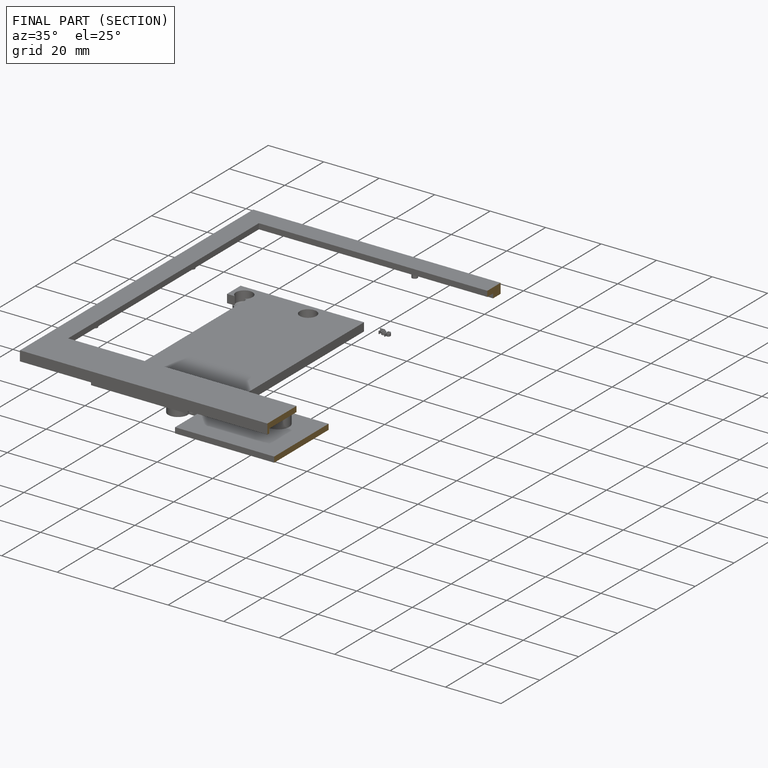
[diagram: finished part — half-section view (interior)]
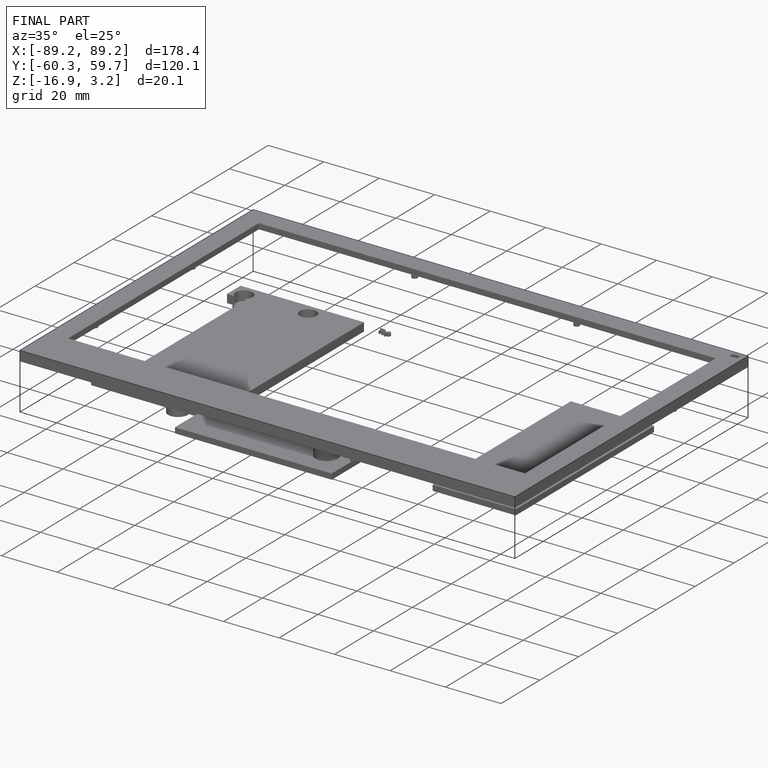
[diagram: finished part — iso view with bounding-box wireframe]
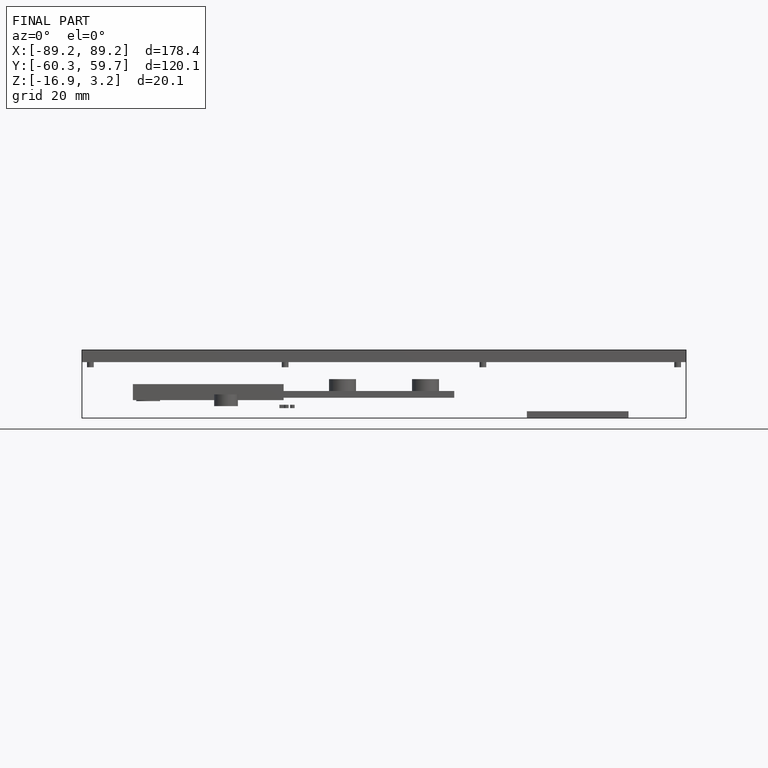
[diagram: finished part — front view with bounding-box wireframe]
